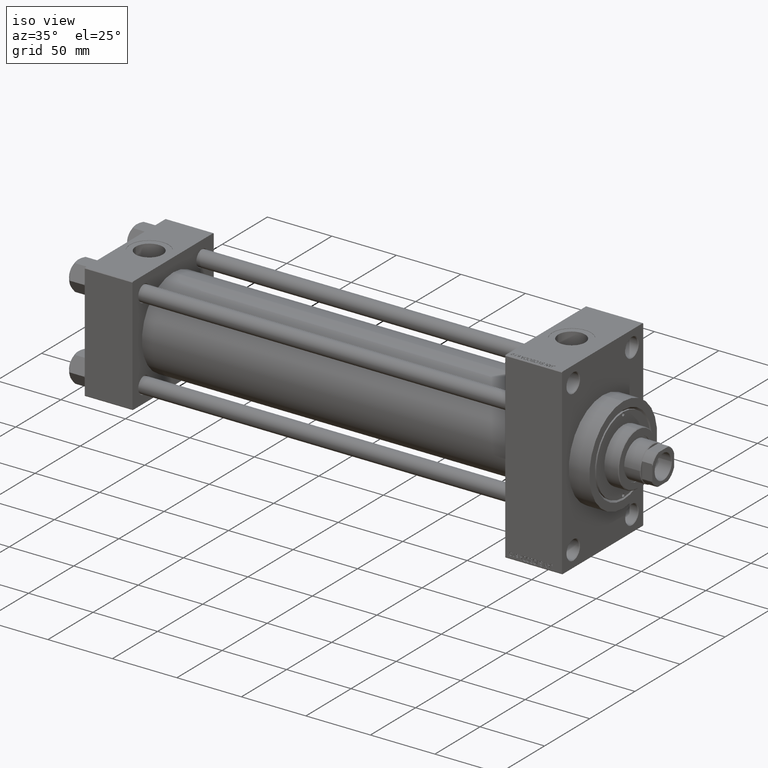
[diagram: clean part render]
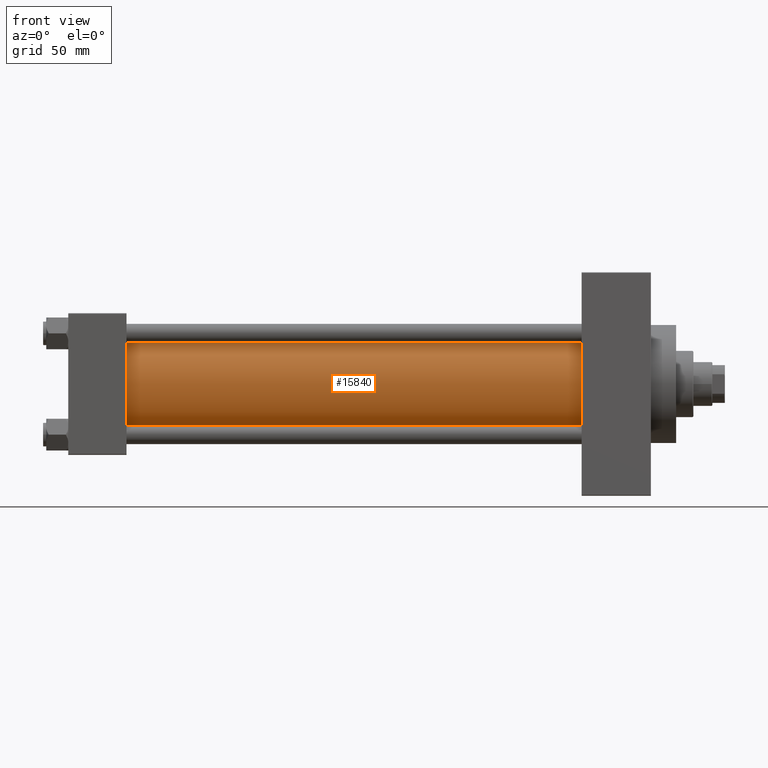
[diagram: tour spotlight — one face highlighted and labeled with its STEP entity id]
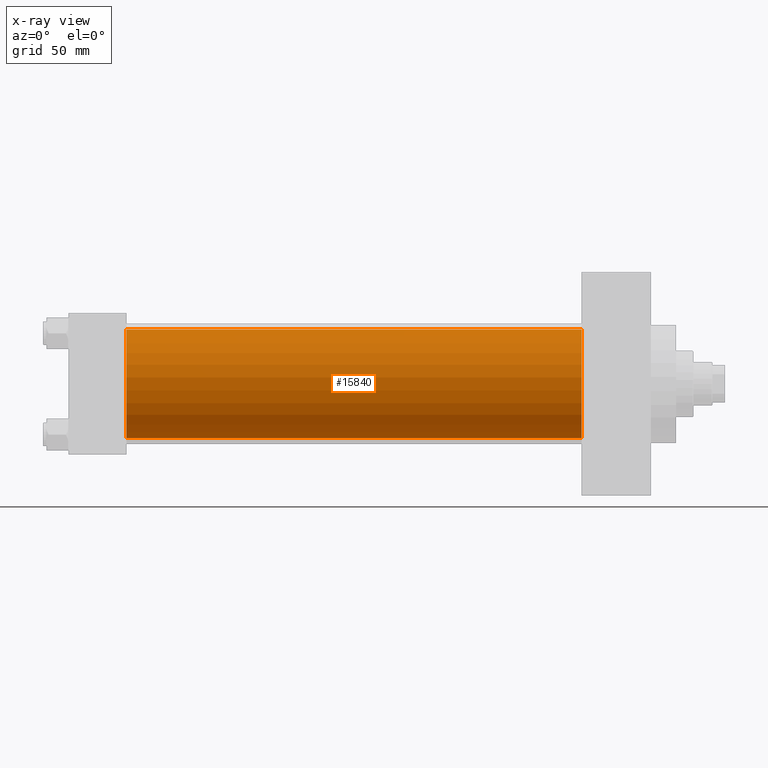
[diagram: x-ray of the same camera — body ghosted, this tour face saturated]
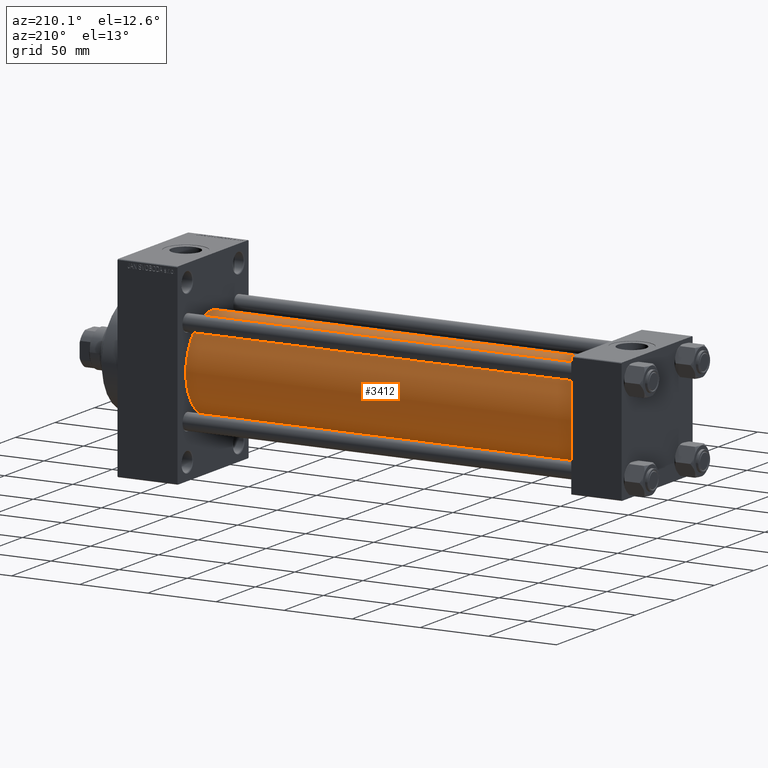
[diagram: tour spotlight — one face highlighted and labeled with its STEP entity id]
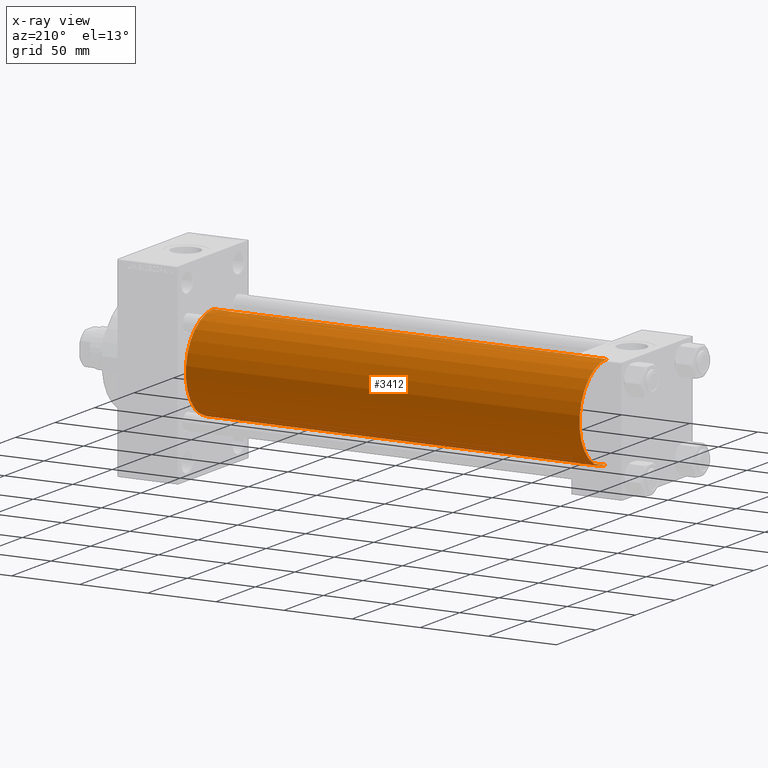
[diagram: x-ray of the same camera — body ghosted, this tour face saturated]
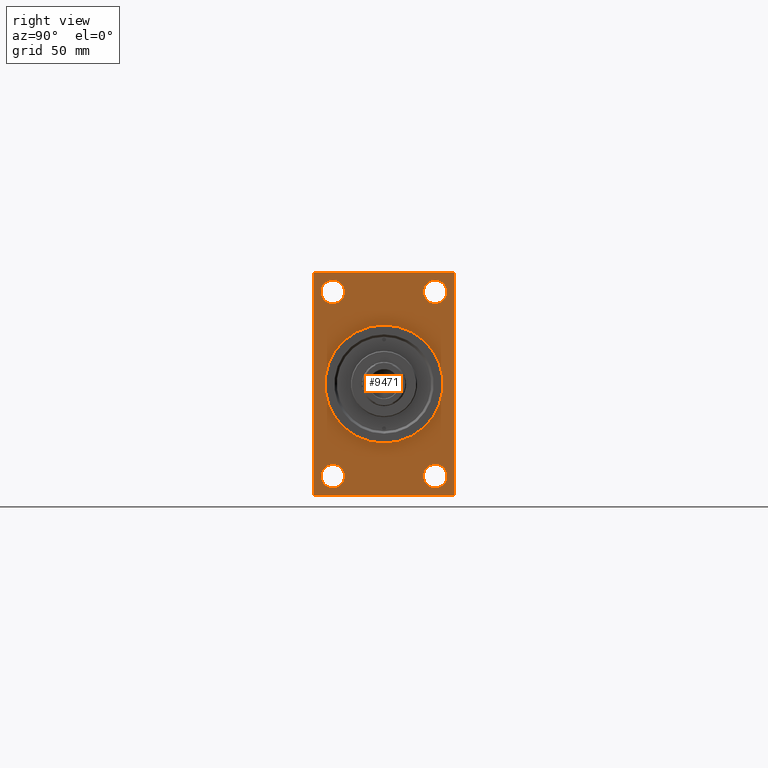
[diagram: tour spotlight — one face highlighted and labeled with its STEP entity id]
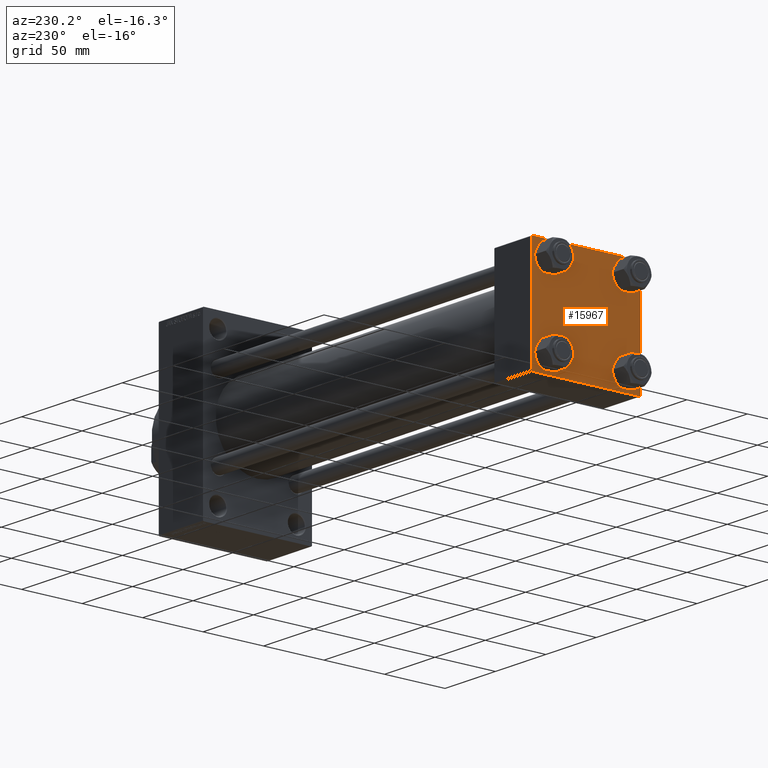
[diagram: tour spotlight — one face highlighted and labeled with its STEP entity id]
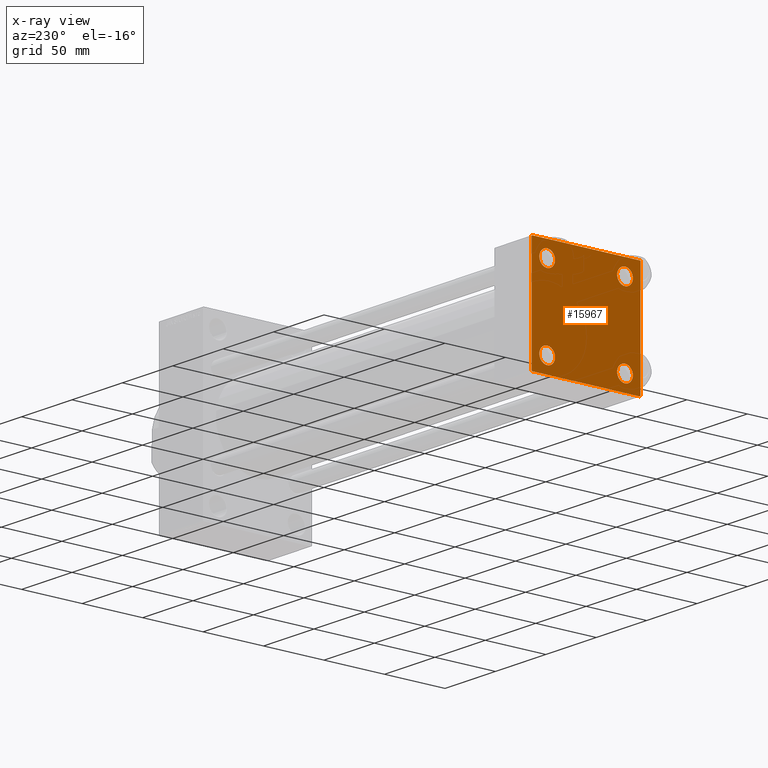
[diagram: x-ray of the same camera — body ghosted, this tour face saturated]
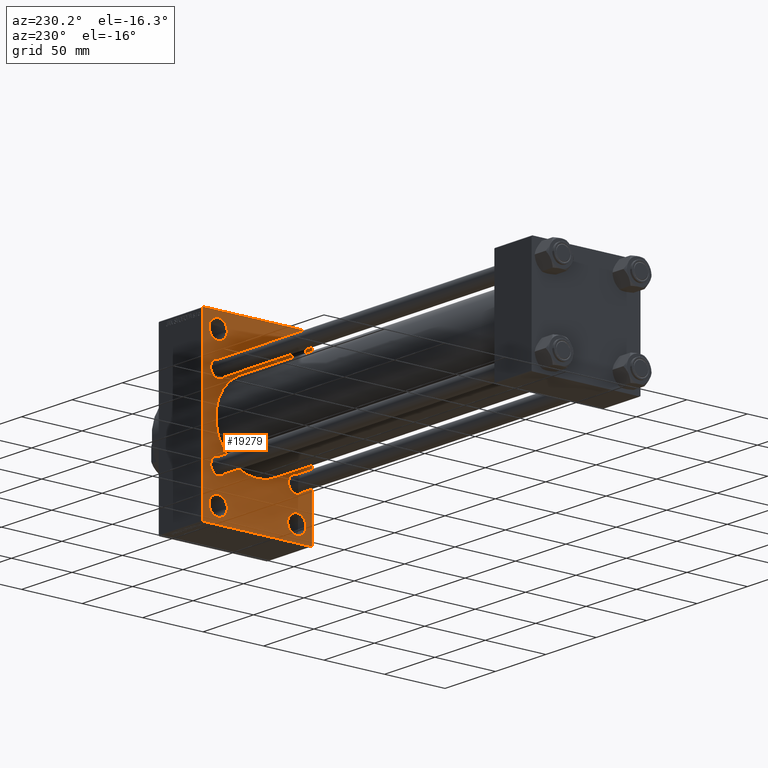
[diagram: tour spotlight — one face highlighted and labeled with its STEP entity id]
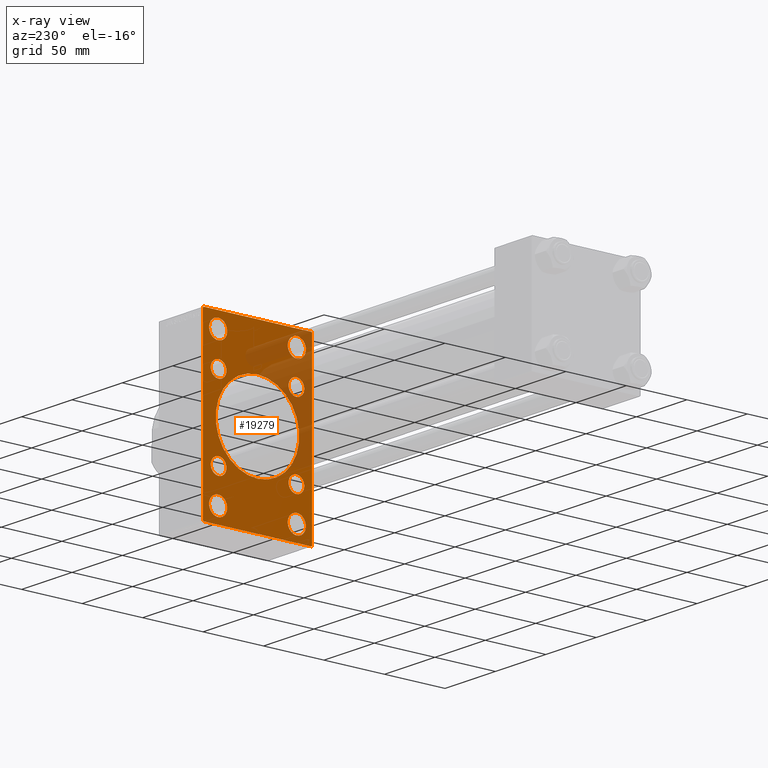
[diagram: x-ray of the same camera — body ghosted, this tour face saturated]
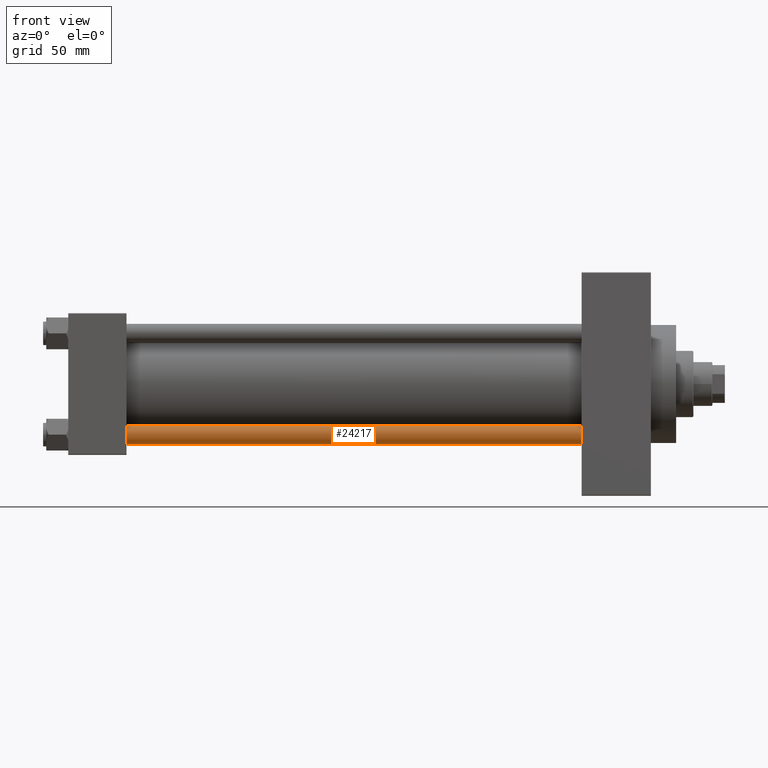
[diagram: tour spotlight — one face highlighted and labeled with its STEP entity id]
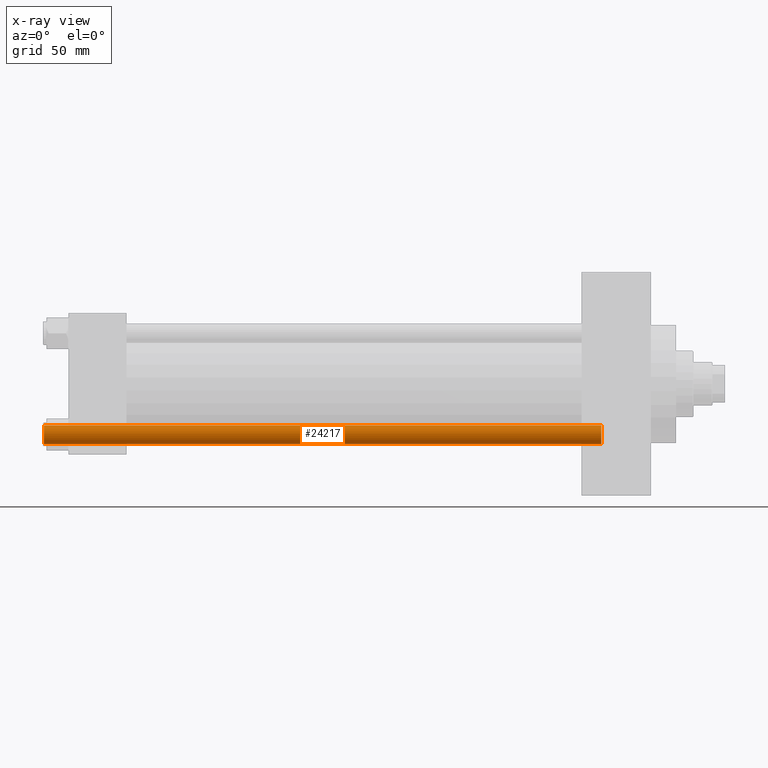
[diagram: x-ray of the same camera — body ghosted, this tour face saturated]
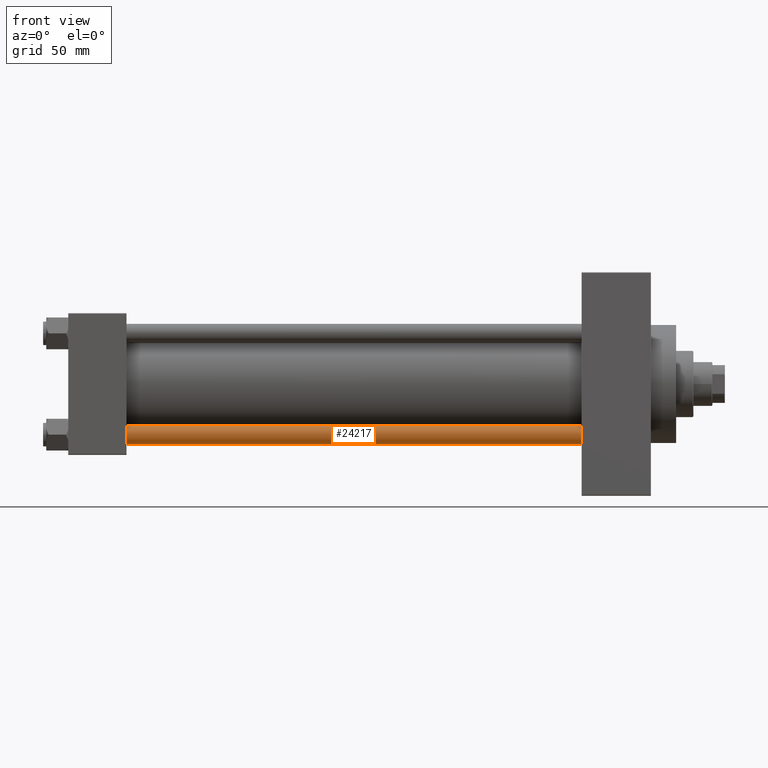
[diagram: tour spotlight — one face highlighted and labeled with its STEP entity id]
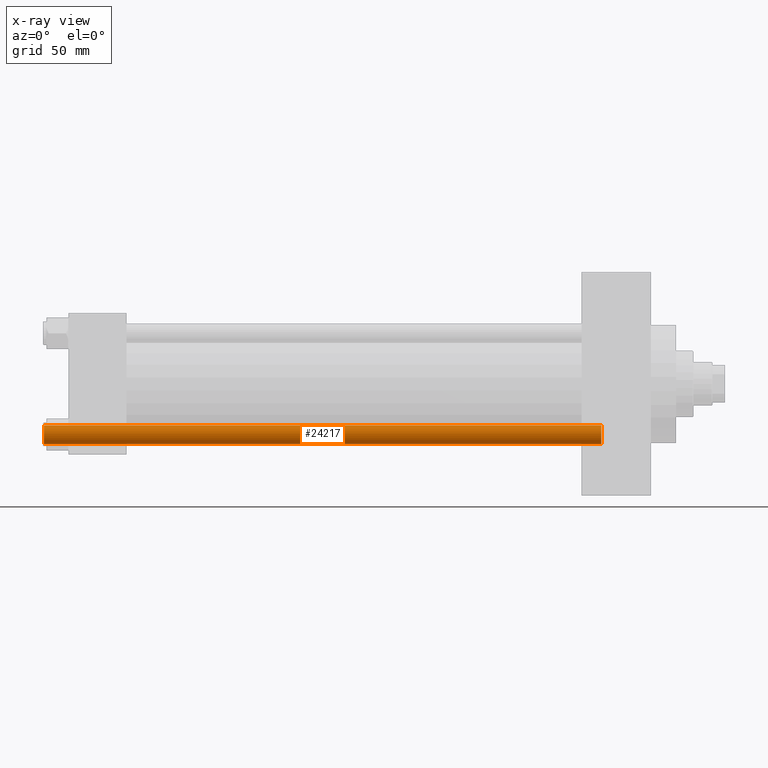
[diagram: x-ray of the same camera — body ghosted, this tour face saturated]
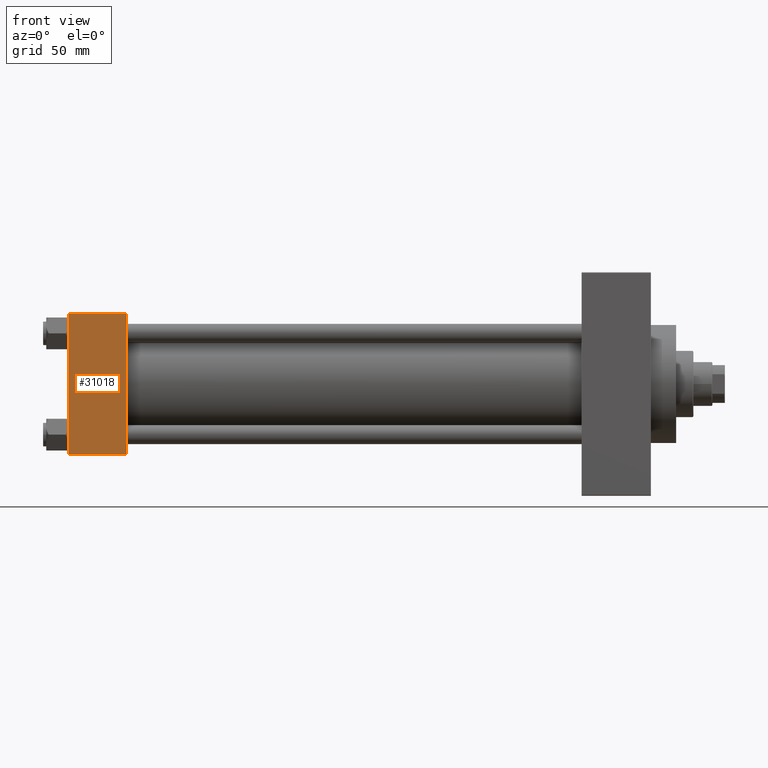
[diagram: tour spotlight — one face highlighted and labeled with its STEP entity id]
A machine part: a face-by-face anatomy tour. The part has 1111 B-rep faces; the first image is the clean iso view, then the 8 largest visible faces are spotlighted one at a time (largest first), each with its STEP entity span.

Face 1 — front view, entity #15840. An x-ray twin of the same camera follows (body ghosted, this face saturated) — the face is partly hidden behind the body. In plain terms, the highlighted cylindrical surface (partial cylindrical patch) has radius 34.5 mm, axis along (-1, -0, -0).
Definition (entity closure, byte-faithful):
#660 = LINE ( 'NONE', #33047, #44955 ) ;
#1502 = VECTOR ( 'NONE', #9990, 1000.000000000000000 ) ;
#4585 = CARTESIAN_POINT ( 'NONE',  ( 325.9999999999999432, -2.602085213965210642E-15, 0.000000000000000000 ) ) ;
#5302 = DIRECTION ( 'NONE',  ( -1.000000000000000000, -0.000000000000000000, -0.000000000000000000 ) ) ;
#6015 = EDGE_CURVE ( 'NONE', #29799, #19592, #41897, .T. ) ;
#6085 = CARTESIAN_POINT ( 'NONE',  ( 325.9999999999999432, -2.602085213965210642E-15, 0.000000000000000000 ) ) ;
#6357 = CARTESIAN_POINT ( 'NONE',  ( 36.99999999999997868, -2.602085213965210642E-15, 34.50000000000000000 ) ) ;
#7143 = ORIENTED_EDGE ( 'NONE', *, *, #6015, .T. ) ;
#9990 = DIRECTION ( 'NONE',  ( -1.000000000000000000, -0.000000000000000000, -0.000000000000000000 ) ) ;
#13268 = DIRECTION ( 'NONE',  ( 0.000000000000000000, 0.000000000000000000, -1.000000000000000000 ) ) ;
#14916 = EDGE_CURVE ( 'NONE', #26714, #30531, #660, .T. ) ;
#15840 = ADVANCED_FACE ( 'NONE', ( #38139 ), #44868, .T. ) ;
#17181 = CARTESIAN_POINT ( 'NONE',  ( 36.99999999999997868, 1.622946243093158675E-15, -34.50000000000000000 ) ) ;
#17314 = ORIENTED_EDGE ( 'NONE', *, *, #42488, .T. ) ;
#19228 = DIRECTION ( 'NONE',  ( 0.000000000000000000, 0.000000000000000000, 1.000000000000000000 ) ) ;
#19592 = VERTEX_POINT ( 'NONE', #6357 ) ;
#20335 = CARTESIAN_POINT ( 'NONE',  ( 325.9999999999999432, -2.602085213965210642E-15, 34.50000000000000000 ) ) ;
#21781 = CIRCLE ( 'NONE', #33274, 34.50000000000000000 ) ;
#24694 = CARTESIAN_POINT ( 'NONE',  ( 36.99999999999997868, -2.602085213965210642E-15, 0.000000000000000000 ) ) ;
#26714 = VERTEX_POINT ( 'NONE', #41039 ) ;
#29233 = DIRECTION ( 'NONE',  ( 1.000000000000000000, -0.000000000000000000, 0.000000000000000000 ) ) ;
#29799 = VERTEX_POINT ( 'NONE', #35275 ) ;
#29921 = DIRECTION ( 'NONE',  ( -1.000000000000000000, -0.000000000000000000, -0.000000000000000000 ) ) ;
#30531 = VERTEX_POINT ( 'NONE', #17181 ) ;
#33047 = CARTESIAN_POINT ( 'NONE',  ( 325.9999999999999432, 1.622946243093158675E-15, -34.50000000000000000 ) ) ;
#33274 = AXIS2_PLACEMENT_3D ( 'NONE', #6085, #46360, #13268 ) ;
#34855 = ORIENTED_EDGE ( 'NONE', *, *, #35119, .F. ) ;
#35044 = CIRCLE ( 'NONE', #46441, 34.50000000000000000 ) ;
#35119 = EDGE_CURVE ( 'NONE', #29799, #26714, #21781, .T. ) ;
#35275 = CARTESIAN_POINT ( 'NONE',  ( 325.9999999999999432, -2.602085213965210642E-15, 34.50000000000000000 ) ) ;
#35702 = DIRECTION ( 'NONE',  ( 0.000000000000000000, 0.000000000000000000, 1.000000000000000000 ) ) ;
#35807 = AXIS2_PLACEMENT_3D ( 'NONE', #4585, #5302, #19228 ) ;
#38139 = FACE_OUTER_BOUND ( 'NONE', #42341, .T. ) ;
#41039 = CARTESIAN_POINT ( 'NONE',  ( 325.9999999999999432, 1.622946243093158675E-15, -34.50000000000000000 ) ) ;
#41897 = LINE ( 'NONE', #20335, #1502 ) ;
#42341 = EDGE_LOOP ( 'NONE', ( #42952, #34855, #7143, #17314 ) ) ;
#42488 = EDGE_CURVE ( 'NONE', #19592, #30531, #35044, .T. ) ;
#42952 = ORIENTED_EDGE ( 'NONE', *, *, #14916, .F. ) ;
#44868 = CYLINDRICAL_SURFACE ( 'NONE', #35807, 34.50000000000000000 ) ;
#44955 = VECTOR ( 'NONE', #29921, 1000.000000000000000 ) ;
#46360 = DIRECTION ( 'NONE',  ( 1.000000000000000000, 0.000000000000000000, 0.000000000000000000 ) ) ;
#46441 = AXIS2_PLACEMENT_3D ( 'NONE', #24694, #29233, #35702 ) ;

Face 2 — auxiliary view, entity #3412. An x-ray twin of the same camera follows (body ghosted, this face saturated) — the face is partly hidden behind the body. In plain terms, the highlighted cylindrical surface (partial cylindrical patch) has radius 34.5 mm, axis along (-1, -0, -0).
Definition (entity closure, byte-faithful):
#660 = LINE ( 'NONE', #33047, #44955 ) ;
#1502 = VECTOR ( 'NONE', #9990, 1000.000000000000000 ) ;
#1893 = CARTESIAN_POINT ( 'NONE',  ( 325.9999999999999432, -2.602085213965210642E-15, 0.000000000000000000 ) ) ;
#2413 = ORIENTED_EDGE ( 'NONE', *, *, #14916, .T. ) ;
#3412 = ADVANCED_FACE ( 'NONE', ( #9578 ), #21986, .T. ) ;
#6015 = EDGE_CURVE ( 'NONE', #29799, #19592, #41897, .T. ) ;
#6357 = CARTESIAN_POINT ( 'NONE',  ( 36.99999999999997868, -2.602085213965210642E-15, 34.50000000000000000 ) ) ;
#6794 = DIRECTION ( 'NONE',  ( 1.000000000000000000, -0.000000000000000000, 0.000000000000000000 ) ) ;
#9578 = FACE_OUTER_BOUND ( 'NONE', #12363, .T. ) ;
#9990 = DIRECTION ( 'NONE',  ( -1.000000000000000000, -0.000000000000000000, -0.000000000000000000 ) ) ;
#10090 = AXIS2_PLACEMENT_3D ( 'NONE', #1893, #46250, #17002 ) ;
#10453 = DIRECTION ( 'NONE',  ( -1.000000000000000000, -0.000000000000000000, -0.000000000000000000 ) ) ;
#12363 = EDGE_LOOP ( 'NONE', ( #15448, #2413, #26461, #31106 ) ) ;
#14916 = EDGE_CURVE ( 'NONE', #26714, #30531, #660, .T. ) ;
#15448 = ORIENTED_EDGE ( 'NONE', *, *, #28746, .F. ) ;
#17002 = DIRECTION ( 'NONE',  ( 0.000000000000000000, 0.000000000000000000, -1.000000000000000000 ) ) ;
#17023 = CIRCLE ( 'NONE', #10090, 34.50000000000000000 ) ;
#17181 = CARTESIAN_POINT ( 'NONE',  ( 36.99999999999997868, 1.622946243093158675E-15, -34.50000000000000000 ) ) ;
#19592 = VERTEX_POINT ( 'NONE', #6357 ) ;
#20335 = CARTESIAN_POINT ( 'NONE',  ( 325.9999999999999432, -2.602085213965210642E-15, 34.50000000000000000 ) ) ;
#21483 = AXIS2_PLACEMENT_3D ( 'NONE', #47296, #6794, #43718 ) ;
#21986 = CYLINDRICAL_SURFACE ( 'NONE', #27490, 34.50000000000000000 ) ;
#23772 = CIRCLE ( 'NONE', #21483, 34.50000000000000000 ) ;
#24532 = EDGE_CURVE ( 'NONE', #30531, #19592, #23772, .T. ) ;
#26461 = ORIENTED_EDGE ( 'NONE', *, *, #24532, .T. ) ;
#26714 = VERTEX_POINT ( 'NONE', #41039 ) ;
#27490 = AXIS2_PLACEMENT_3D ( 'NONE', #29184, #10453, #36132 ) ;
#28746 = EDGE_CURVE ( 'NONE', #26714, #29799, #17023, .T. ) ;
#29184 = CARTESIAN_POINT ( 'NONE',  ( 325.9999999999999432, -2.602085213965210642E-15, 0.000000000000000000 ) ) ;
#29799 = VERTEX_POINT ( 'NONE', #35275 ) ;
#29921 = DIRECTION ( 'NONE',  ( -1.000000000000000000, -0.000000000000000000, -0.000000000000000000 ) ) ;
#30531 = VERTEX_POINT ( 'NONE', #17181 ) ;
#31106 = ORIENTED_EDGE ( 'NONE', *, *, #6015, .F. ) ;
#33047 = CARTESIAN_POINT ( 'NONE',  ( 325.9999999999999432, 1.622946243093158675E-15, -34.50000000000000000 ) ) ;
#35275 = CARTESIAN_POINT ( 'NONE',  ( 325.9999999999999432, -2.602085213965210642E-15, 34.50000000000000000 ) ) ;
#36132 = DIRECTION ( 'NONE',  ( 0.000000000000000000, 0.000000000000000000, 1.000000000000000000 ) ) ;
#41039 = CARTESIAN_POINT ( 'NONE',  ( 325.9999999999999432, 1.622946243093158675E-15, -34.50000000000000000 ) ) ;
#41897 = LINE ( 'NONE', #20335, #1502 ) ;
#43718 = DIRECTION ( 'NONE',  ( 0.000000000000000000, 0.000000000000000000, 1.000000000000000000 ) ) ;
#44955 = VECTOR ( 'NONE', #29921, 1000.000000000000000 ) ;
#46250 = DIRECTION ( 'NONE',  ( 1.000000000000000000, 0.000000000000000000, 0.000000000000000000 ) ) ;
#47296 = CARTESIAN_POINT ( 'NONE',  ( 36.99999999999997868, -2.602085213965210642E-15, 0.000000000000000000 ) ) ;

Face 3 — right view, entity #9471. In plain terms, the highlighted planar face has unit normal (-1, 0, 0).
Definition (entity closure, byte-faithful):
#58 = AXIS2_PLACEMENT_3D ( 'NONE', #13106, #20321, #38997 ) ;
#994 = VERTEX_POINT ( 'NONE', #13267 ) ;
#1025 = CIRCLE ( 'NONE', #17125, 7.500000000000062172 ) ;
#1099 = DIRECTION ( 'NONE',  ( 1.000000000000000000, 0.000000000000000000, 0.000000000000000000 ) ) ;
#1398 = CARTESIAN_POINT ( 'NONE',  ( 369.9999999999999432, -32.50000000000000000, 50.99999999999996447 ) ) ;
#1546 = VERTEX_POINT ( 'NONE', #10660 ) ;
#1795 = DIRECTION ( 'NONE',  ( 0.000000000000000000, -0.7071067811865867636, 0.7071067811865081598 ) ) ;
#2078 = CARTESIAN_POINT ( 'NONE',  ( 369.9999999999999432, 32.50000000000000711, 50.99999999999996447 ) ) ;
#2561 = FACE_BOUND ( 'NONE', #29791, .T. ) ;
#2903 = DIRECTION ( 'NONE',  ( 0.000000000000000000, 0.000000000000000000, 1.000000000000000000 ) ) ;
#2968 = CIRCLE ( 'NONE', #22867, 37.50000000000000711 ) ;
#3506 = EDGE_CURVE ( 'NONE', #4704, #15607, #2968, .T. ) ;
#3982 = DIRECTION ( 'NONE',  ( -0.000000000000000000, 0.7071067811865771047, 0.7071067811865180408 ) ) ;
#4541 = CARTESIAN_POINT ( 'NONE',  ( 369.9999999999999432, -44.99999999999997158, 70.49999999999987210 ) ) ;
#4704 = VERTEX_POINT ( 'NONE', #46025 ) ;
#4720 = DIRECTION ( 'NONE',  ( 0.000000000000000000, 0.000000000000000000, 1.000000000000000000 ) ) ;
#4921 = CARTESIAN_POINT ( 'NONE',  ( 369.9999999999999432, 44.49999999999996447, 71.00000000000000000 ) ) ;
#5393 = CARTESIAN_POINT ( 'NONE',  ( 369.9999999999999432, -32.50000000000000000, 66.00000000000005684 ) ) ;
#5539 = EDGE_CURVE ( 'NONE', #994, #42135, #35242, .T. ) ;
#5574 = CARTESIAN_POINT ( 'NONE',  ( 369.9999999999999432, 45.00000000000001421, -70.49999999999991473 ) ) ;
#5909 = CARTESIAN_POINT ( 'NONE',  ( 369.9999999999999432, -44.49999999999997158, -71.00000000000000000 ) ) ;
#5989 = CARTESIAN_POINT ( 'NONE',  ( 369.9999999999999432, 45.00000000000002132, 71.00000000000000000 ) ) ;
#6032 = DIRECTION ( 'NONE',  ( -0.000000000000000000, -0.7071067811865426878, -0.7071067811865524577 ) ) ;
#6181 = DIRECTION ( 'NONE',  ( 1.000000000000000000, 0.000000000000000000, 0.000000000000000000 ) ) ;
#6981 = AXIS2_PLACEMENT_3D ( 'NONE', #35638, #10212, #39471 ) ;
#7212 = LINE ( 'NONE', #44367, #31732 ) ;
#7602 = CIRCLE ( 'NONE', #11415, 37.50000000000000711 ) ;
#7715 = VERTEX_POINT ( 'NONE', #13386 ) ;
#7877 = DIRECTION ( 'NONE',  ( -1.000000000000000000, 0.000000000000000000, -0.000000000000000000 ) ) ;
#7920 = ORIENTED_EDGE ( 'NONE', *, *, #14379, .T. ) ;
#8030 = CARTESIAN_POINT ( 'NONE',  ( 369.9999999999999432, -32.50000000000000000, -66.00000000000004263 ) ) ;
#9105 = ORIENTED_EDGE ( 'NONE', *, *, #17600, .T. ) ;
#9471 = ADVANCED_FACE ( 'NONE', ( #42838, #2561, #46428, #39001, #17420, #34935 ), #46902, .F. ) ;
#10212 = DIRECTION ( 'NONE',  ( -1.000000000000000000, 0.000000000000000000, -0.000000000000000000 ) ) ;
#10597 = CIRCLE ( 'NONE', #39712, 7.500000000000047962 ) ;
#10636 = CARTESIAN_POINT ( 'NONE',  ( 369.9999999999999432, 44.49999999999990052, -70.99999999999998579 ) ) ;
#10660 = CARTESIAN_POINT ( 'NONE',  ( 369.9999999999999432, -44.49999999999994316, -71.00000000000000000 ) ) ;
#11228 = VERTEX_POINT ( 'NONE', #34835 ) ;
#11415 = AXIS2_PLACEMENT_3D ( 'NONE', #27999, #6181, #20337 ) ;
#11825 = VERTEX_POINT ( 'NONE', #35825 ) ;
#12107 = DIRECTION ( 'NONE',  ( 0.000000000000000000, 0.000000000000000000, -1.000000000000000000 ) ) ;
#12163 = CARTESIAN_POINT ( 'NONE',  ( 369.9999999999999432, -32.50000000000000000, -58.49999999999999289 ) ) ;
#12419 = EDGE_CURVE ( 'NONE', #20475, #31838, #29952, .T. ) ;
#12768 = ORIENTED_EDGE ( 'NONE', *, *, #38434, .F. ) ;
#13097 = DIRECTION ( 'NONE',  ( 0.000000000000000000, 0.7071067811865965336, -0.7071067811864985009 ) ) ;
#13106 = CARTESIAN_POINT ( 'NONE',  ( 369.9999999999999432, -32.50000000000000000, 58.50000000000000711 ) ) ;
#13185 = CARTESIAN_POINT ( 'NONE',  ( 369.9999999999999432, -44.99999999999997158, -70.50000000000005684 ) ) ;
#13267 = CARTESIAN_POINT ( 'NONE',  ( 369.9999999999999432, 45.00000000000002132, 70.50000000000000000 ) ) ;
#13269 = DIRECTION ( 'NONE',  ( 0.000000000000000000, 0.000000000000000000, -1.000000000000000000 ) ) ;
#13386 = CARTESIAN_POINT ( 'NONE',  ( 369.9999999999999432, 44.49999999999996447, 71.00000000000000000 ) ) ;
#13721 = AXIS2_PLACEMENT_3D ( 'NONE', #18909, #22281, #41188 ) ;
#14162 = CARTESIAN_POINT ( 'NONE',  ( 369.9999999999999432, 32.50000000000000711, -58.50000000000000000 ) ) ;
#14379 = EDGE_CURVE ( 'NONE', #7715, #40111, #34586, .T. ) ;
#14948 = ORIENTED_EDGE ( 'NONE', *, *, #22423, .T. ) ;
#15049 = DIRECTION ( 'NONE',  ( 0.000000000000000000, 0.000000000000000000, 1.000000000000000000 ) ) ;
#15607 = VERTEX_POINT ( 'NONE', #43449 ) ;
#15745 = CARTESIAN_POINT ( 'NONE',  ( 369.9999999999999432, -32.50000000000000000, -50.99999999999992895 ) ) ;
#16346 = CARTESIAN_POINT ( 'NONE',  ( 369.9999999999999432, -44.99999999999997158, 70.49999999999987210 ) ) ;
#16359 = CIRCLE ( 'NONE', #43167, 7.500000000000055067 ) ;
#16399 = DIRECTION ( 'NONE',  ( 0.000000000000000000, 0.000000000000000000, 1.000000000000000000 ) ) ;
#16470 = DIRECTION ( 'NONE',  ( 0.000000000000000000, 0.000000000000000000, 1.000000000000000000 ) ) ;
#17125 = AXIS2_PLACEMENT_3D ( 'NONE', #14162, #28802, #2903 ) ;
#17269 = EDGE_CURVE ( 'NONE', #31838, #20475, #10597, .T. ) ;
#17420 = FACE_BOUND ( 'NONE', #44090, .T. ) ;
#17600 = EDGE_CURVE ( 'NONE', #37892, #23678, #45655, .T. ) ;
#18613 = LINE ( 'NONE', #25341, #28919 ) ;
#18694 = ORIENTED_EDGE ( 'NONE', *, *, #45879, .T. ) ;
#18909 = CARTESIAN_POINT ( 'NONE',  ( 369.9999999999999432, 32.50000000000000711, 58.50000000000000711 ) ) ;
#18946 = VECTOR ( 'NONE', #34813, 1000.000000000000000 ) ;
#20068 = ORIENTED_EDGE ( 'NONE', *, *, #5539, .F. ) ;
#20250 = CARTESIAN_POINT ( 'NONE',  ( 369.9999999999999432, -32.50000000000000000, -58.49999999999999289 ) ) ;
#20321 = DIRECTION ( 'NONE',  ( -1.000000000000000000, 0.000000000000000000, -0.000000000000000000 ) ) ;
#20337 = DIRECTION ( 'NONE',  ( 0.000000000000000000, 0.000000000000000000, -1.000000000000000000 ) ) ;
#20475 = VERTEX_POINT ( 'NONE', #1398 ) ;
#22281 = DIRECTION ( 'NONE',  ( -1.000000000000000000, 0.000000000000000000, -0.000000000000000000 ) ) ;
#22396 = EDGE_CURVE ( 'NONE', #39065, #11825, #36017, .T. ) ;
#22423 = EDGE_CURVE ( 'NONE', #31543, #31939, #42940, .T. ) ;
#22576 = EDGE_CURVE ( 'NONE', #15607, #4704, #7602, .T. ) ;
#22867 = AXIS2_PLACEMENT_3D ( 'NONE', #44976, #1099, #12107 ) ;
#23678 = VERTEX_POINT ( 'NONE', #13185 ) ;
#24116 = CIRCLE ( 'NONE', #43237, 7.500000000000047962 ) ;
#24357 = ORIENTED_EDGE ( 'NONE', *, *, #17269, .T. ) ;
#24750 = EDGE_CURVE ( 'NONE', #40111, #37892, #42476, .T. ) ;
#25252 = EDGE_CURVE ( 'NONE', #36317, #11228, #33726, .T. ) ;
#25341 = CARTESIAN_POINT ( 'NONE',  ( 369.9999999999999432, 45.00000000000001421, -70.49999999999991473 ) ) ;
#25640 = EDGE_CURVE ( 'NONE', #994, #7715, #37764, .T. ) ;
#25832 = CARTESIAN_POINT ( 'NONE',  ( 369.9999999999999432, -32.50000000000000000, 58.50000000000000711 ) ) ;
#25909 = DIRECTION ( 'NONE',  ( 0.000000000000000000, -1.000000000000000000, -1.541976423090495633E-16 ) ) ;
#25989 = AXIS2_PLACEMENT_3D ( 'NONE', #12163, #7877, #15049 ) ;
#26773 = CARTESIAN_POINT ( 'NONE',  ( 369.9999999999999432, 32.50000000000000711, -50.99999999999993605 ) ) ;
#27243 = ORIENTED_EDGE ( 'NONE', *, *, #32273, .T. ) ;
#27556 = VECTOR ( 'NONE', #28049, 1000.000000000000000 ) ;
#27999 = CARTESIAN_POINT ( 'NONE',  ( 369.9999999999999432, 0.000000000000000000, 0.000000000000000000 ) ) ;
#28049 = DIRECTION ( 'NONE',  ( 0.000000000000000000, -4.886545002751570165E-17, -1.000000000000000000 ) ) ;
#28593 = CARTESIAN_POINT ( 'NONE',  ( 369.9999999999999432, 32.50000000000000711, 58.50000000000000711 ) ) ;
#28802 = DIRECTION ( 'NONE',  ( -1.000000000000000000, 0.000000000000000000, -0.000000000000000000 ) ) ;
#28919 = VECTOR ( 'NONE', #3982, 999.9999999999998863 ) ;
#29791 = EDGE_LOOP ( 'NONE', ( #30352, #14948 ) ) ;
#29952 = CIRCLE ( 'NONE', #58, 7.500000000000047962 ) ;
#30352 = ORIENTED_EDGE ( 'NONE', *, *, #37375, .T. ) ;
#30480 = EDGE_CURVE ( 'NONE', #23678, #1546, #39232, .T. ) ;
#30754 = ORIENTED_EDGE ( 'NONE', *, *, #22576, .F. ) ;
#31543 = VERTEX_POINT ( 'NONE', #15745 ) ;
#31598 = EDGE_LOOP ( 'NONE', ( #43991, #24357 ) ) ;
#31605 = VECTOR ( 'NONE', #13097, 1000.000000000000114 ) ;
#31732 = VECTOR ( 'NONE', #25909, 1000.000000000000000 ) ;
#31838 = VERTEX_POINT ( 'NONE', #5393 ) ;
#31939 = VERTEX_POINT ( 'NONE', #8030 ) ;
#32019 = EDGE_LOOP ( 'NONE', ( #27243, #34850 ) ) ;
#32261 = ORIENTED_EDGE ( 'NONE', *, *, #35954, .T. ) ;
#32273 = EDGE_CURVE ( 'NONE', #11228, #36317, #1025, .T. ) ;
#33236 = CARTESIAN_POINT ( 'NONE',  ( 369.9999999999999432, -44.49999999999983658, 70.99999999999998579 ) ) ;
#33726 = CIRCLE ( 'NONE', #37517, 7.500000000000062172 ) ;
#34354 = VECTOR ( 'NONE', #13269, 1000.000000000000000 ) ;
#34586 = LINE ( 'NONE', #45601, #18946 ) ;
#34813 = DIRECTION ( 'NONE',  ( 0.000000000000000000, -1.000000000000000000, -1.541976423090495387E-16 ) ) ;
#34835 = CARTESIAN_POINT ( 'NONE',  ( 369.9999999999999432, 32.50000000000000711, -66.00000000000005684 ) ) ;
#34850 = ORIENTED_EDGE ( 'NONE', *, *, #25252, .T. ) ;
#34935 = FACE_OUTER_BOUND ( 'NONE', #46219, .T. ) ;
#35242 = LINE ( 'NONE', #5989, #27556 ) ;
#35562 = VERTEX_POINT ( 'NONE', #10636 ) ;
#35638 = CARTESIAN_POINT ( 'NONE',  ( 369.9999999999999432, 0.000000000000000000, 0.000000000000000000 ) ) ;
#35825 = CARTESIAN_POINT ( 'NONE',  ( 369.9999999999999432, 32.50000000000000711, 66.00000000000005684 ) ) ;
#35954 = EDGE_CURVE ( 'NONE', #11825, #39065, #24116, .T. ) ;
#36017 = CIRCLE ( 'NONE', #13721, 7.500000000000047962 ) ;
#36317 = VERTEX_POINT ( 'NONE', #26773 ) ;
#37375 = EDGE_CURVE ( 'NONE', #31939, #31543, #16359, .T. ) ;
#37517 = AXIS2_PLACEMENT_3D ( 'NONE', #45493, #38752, #16470 ) ;
#37764 = LINE ( 'NONE', #4921, #42179 ) ;
#37892 = VERTEX_POINT ( 'NONE', #4541 ) ;
#38434 = EDGE_CURVE ( 'NONE', #35562, #1546, #7212, .T. ) ;
#38752 = DIRECTION ( 'NONE',  ( -1.000000000000000000, 0.000000000000000000, -0.000000000000000000 ) ) ;
#38997 = DIRECTION ( 'NONE',  ( 0.000000000000000000, 0.000000000000000000, 1.000000000000000000 ) ) ;
#39001 = FACE_BOUND ( 'NONE', #39444, .T. ) ;
#39065 = VERTEX_POINT ( 'NONE', #2078 ) ;
#39232 = LINE ( 'NONE', #5909, #31605 ) ;
#39444 = EDGE_LOOP ( 'NONE', ( #41283, #32261 ) ) ;
#39471 = DIRECTION ( 'NONE',  ( -0.000000000000000000, 0.000000000000000000, 1.000000000000000000 ) ) ;
#39604 = DIRECTION ( 'NONE',  ( 0.000000000000000000, 0.000000000000000000, 1.000000000000000000 ) ) ;
#39712 = AXIS2_PLACEMENT_3D ( 'NONE', #25832, #40449, #4720 ) ;
#39842 = VECTOR ( 'NONE', #6032, 1000.000000000000000 ) ;
#40111 = VERTEX_POINT ( 'NONE', #33236 ) ;
#40449 = DIRECTION ( 'NONE',  ( -1.000000000000000000, 0.000000000000000000, -0.000000000000000000 ) ) ;
#41188 = DIRECTION ( 'NONE',  ( 0.000000000000000000, 0.000000000000000000, 1.000000000000000000 ) ) ;
#41283 = ORIENTED_EDGE ( 'NONE', *, *, #22396, .T. ) ;
#42135 = VERTEX_POINT ( 'NONE', #5574 ) ;
#42179 = VECTOR ( 'NONE', #1795, 1000.000000000000000 ) ;
#42476 = LINE ( 'NONE', #16346, #39842 ) ;
#42527 = DIRECTION ( 'NONE',  ( -1.000000000000000000, 0.000000000000000000, -0.000000000000000000 ) ) ;
#42616 = ORIENTED_EDGE ( 'NONE', *, *, #3506, .F. ) ;
#42838 = FACE_BOUND ( 'NONE', #31598, .T. ) ;
#42940 = CIRCLE ( 'NONE', #25989, 7.500000000000055067 ) ;
#43167 = AXIS2_PLACEMENT_3D ( 'NONE', #20250, #42527, #16399 ) ;
#43218 = DIRECTION ( 'NONE',  ( -1.000000000000000000, 0.000000000000000000, -0.000000000000000000 ) ) ;
#43237 = AXIS2_PLACEMENT_3D ( 'NONE', #28593, #43218, #39604 ) ;
#43345 = ORIENTED_EDGE ( 'NONE', *, *, #30480, .T. ) ;
#43449 = CARTESIAN_POINT ( 'NONE',  ( 369.9999999999999432, 4.592425496802575156E-15, -37.50000000000000711 ) ) ;
#43991 = ORIENTED_EDGE ( 'NONE', *, *, #12419, .T. ) ;
#44090 = EDGE_LOOP ( 'NONE', ( #42616, #30754 ) ) ;
#44367 = CARTESIAN_POINT ( 'NONE',  ( 369.9999999999999432, 45.00000000000001421, -70.99999999999998579 ) ) ;
#44976 = CARTESIAN_POINT ( 'NONE',  ( 369.9999999999999432, 0.000000000000000000, 0.000000000000000000 ) ) ;
#45251 = ORIENTED_EDGE ( 'NONE', *, *, #25640, .T. ) ;
#45493 = CARTESIAN_POINT ( 'NONE',  ( 369.9999999999999432, 32.50000000000000711, -58.50000000000000000 ) ) ;
#45601 = CARTESIAN_POINT ( 'NONE',  ( 369.9999999999999432, 45.00000000000002132, 71.00000000000000000 ) ) ;
#45655 = LINE ( 'NONE', #46361, #34354 ) ;
#45879 = EDGE_CURVE ( 'NONE', #35562, #42135, #18613, .T. ) ;
#46025 = CARTESIAN_POINT ( 'NONE',  ( 369.9999999999999432, 0.000000000000000000, 37.50000000000000711 ) ) ;
#46219 = EDGE_LOOP ( 'NONE', ( #9105, #43345, #12768, #18694, #20068, #45251, #7920, #46758 ) ) ;
#46361 = CARTESIAN_POINT ( 'NONE',  ( 369.9999999999999432, -44.99999999999997158, 70.99999999999998579 ) ) ;
#46428 = FACE_BOUND ( 'NONE', #32019, .T. ) ;
#46758 = ORIENTED_EDGE ( 'NONE', *, *, #24750, .T. ) ;
#46902 = PLANE ( 'NONE',  #6981 ) ;

Face 4 — auxiliary view, entity #15967. An x-ray twin of the same camera follows (body ghosted, this face saturated) — the face is partly hidden behind the body. In plain terms, the highlighted planar face has unit normal (-1, 0, 0).
Definition (entity closure, byte-faithful):
#591 = VERTEX_POINT ( 'NONE', #35624 ) ;
#611 = LINE ( 'NONE', #22211, #19951 ) ;
#682 = AXIS2_PLACEMENT_3D ( 'NONE', #19996, #20231, #19752 ) ;
#846 = CARTESIAN_POINT ( 'NONE',  ( 0.000000000000000000, 44.99999999999998579, 45.00000000000001421 ) ) ;
#1432 = DIRECTION ( 'NONE',  ( 1.000000000000000000, -0.000000000000000000, 0.000000000000000000 ) ) ;
#1694 = EDGE_CURVE ( 'NONE', #12175, #22983, #45009, .T. ) ;
#1920 = ORIENTED_EDGE ( 'NONE', *, *, #11284, .T. ) ;
#2685 = VERTEX_POINT ( 'NONE', #18131 ) ;
#2719 = LINE ( 'NONE', #32214, #18735 ) ;
#3193 = LINE ( 'NONE', #43473, #15537 ) ;
#3887 = EDGE_CURVE ( 'NONE', #24835, #14182, #21362, .T. ) ;
#3953 = VERTEX_POINT ( 'NONE', #8937 ) ;
#4079 = AXIS2_PLACEMENT_3D ( 'NONE', #15930, #13284, #35356 ) ;
#4200 = ORIENTED_EDGE ( 'NONE', *, *, #3887, .T. ) ;
#4544 = EDGE_CURVE ( 'NONE', #25920, #7296, #19868, .T. ) ;
#5268 = CARTESIAN_POINT ( 'NONE',  ( 0.000000000000000000, -32.14999999999997726, -32.15000000000001279 ) ) ;
#5445 = CIRCLE ( 'NONE', #6205, 6.499999999999977796 ) ;
#5506 = DIRECTION ( 'NONE',  ( 1.000000000000000000, -0.000000000000000000, 0.000000000000000000 ) ) ;
#5659 = AXIS2_PLACEMENT_3D ( 'NONE', #38021, #31313, #12603 ) ;
#6205 = AXIS2_PLACEMENT_3D ( 'NONE', #5268, #1432, #29566 ) ;
#7032 = CARTESIAN_POINT ( 'NONE',  ( 0.000000000000000000, -32.14999999999997726, 25.64999999999999147 ) ) ;
#7190 = FACE_BOUND ( 'NONE', #41138, .T. ) ;
#7296 = VERTEX_POINT ( 'NONE', #28421 ) ;
#7333 = EDGE_LOOP ( 'NONE', ( #16627, #46743 ) ) ;
#8186 = CIRCLE ( 'NONE', #34996, 6.499999999999977796 ) ;
#8519 = LINE ( 'NONE', #846, #26911 ) ;
#8694 = CIRCLE ( 'NONE', #5659, 6.499999999999977796 ) ;
#8937 = CARTESIAN_POINT ( 'NONE',  ( 0.000000000000000000, 44.99999999999998579, 44.50000000000001421 ) ) ;
#9127 = AXIS2_PLACEMENT_3D ( 'NONE', #12452, #30698, #18954 ) ;
#9155 = FACE_BOUND ( 'NONE', #45304, .T. ) ;
#9189 = EDGE_CURVE ( 'NONE', #41847, #40446, #5445, .T. ) ;
#10210 = EDGE_CURVE ( 'NONE', #3953, #34571, #8519, .T. ) ;
#11284 = EDGE_CURVE ( 'NONE', #14182, #24835, #35998, .T. ) ;
#11501 = CARTESIAN_POINT ( 'NONE',  ( 0.000000000000000000, 44.99999999999998579, 45.00000000000001421 ) ) ;
#11718 = ORIENTED_EDGE ( 'NONE', *, *, #14712, .T. ) ;
#11845 = DIRECTION ( 'NONE',  ( 0.000000000000000000, 0.000000000000000000, 1.000000000000000000 ) ) ;
#12175 = VERTEX_POINT ( 'NONE', #34317 ) ;
#12398 = ORIENTED_EDGE ( 'NONE', *, *, #4544, .T. ) ;
#12452 = CARTESIAN_POINT ( 'NONE',  ( 0.000000000000000000, 32.14999999999999147, -32.15000000000000568 ) ) ;
#12603 = DIRECTION ( 'NONE',  ( 0.000000000000000000, 0.000000000000000000, 1.000000000000000000 ) ) ;
#13080 = VECTOR ( 'NONE', #45785, 1000.000000000000114 ) ;
#13284 = DIRECTION ( 'NONE',  ( 1.000000000000000000, -0.000000000000000000, 0.000000000000000000 ) ) ;
#13482 = VERTEX_POINT ( 'NONE', #33614 ) ;
#14182 = VERTEX_POINT ( 'NONE', #7032 ) ;
#14404 = DIRECTION ( 'NONE',  ( 1.000000000000000000, -0.000000000000000000, 0.000000000000000000 ) ) ;
#14466 = CARTESIAN_POINT ( 'NONE',  ( 0.000000000000000000, -32.14999999999997726, -25.65000000000003411 ) ) ;
#14712 = EDGE_CURVE ( 'NONE', #40446, #41847, #8186, .T. ) ;
#14724 = VERTEX_POINT ( 'NONE', #33816 ) ;
#14859 = CARTESIAN_POINT ( 'NONE',  ( 0.000000000000000000, -32.14999999999997726, 38.65000000000003411 ) ) ;
#15120 = AXIS2_PLACEMENT_3D ( 'NONE', #21825, #44589, #25184 ) ;
#15537 = VECTOR ( 'NONE', #40762, 1000.000000000000114 ) ;
#15930 = CARTESIAN_POINT ( 'NONE',  ( 0.000000000000000000, 32.14999999999999147, 32.15000000000000568 ) ) ;
#15967 = ADVANCED_FACE ( 'NONE', ( #9155, #7190, #43879, #40030, #36202 ), #36427, .T. ) ;
#16059 = CARTESIAN_POINT ( 'NONE',  ( 0.000000000000000000, 44.49999999999998579, -44.99999999999998579 ) ) ;
#16627 = ORIENTED_EDGE ( 'NONE', *, *, #1694, .T. ) ;
#17306 = CARTESIAN_POINT ( 'NONE',  ( 0.000000000000000000, -44.49999999999995737, -45.00000000000000000 ) ) ;
#18131 = CARTESIAN_POINT ( 'NONE',  ( 0.000000000000000000, 44.49999999999998579, 45.00000000000001421 ) ) ;
#18253 = CARTESIAN_POINT ( 'NONE',  ( 0.000000000000000000, -32.14999999999997726, 32.15000000000001279 ) ) ;
#18735 = VECTOR ( 'NONE', #31266, 1000.000000000000000 ) ;
#18954 = DIRECTION ( 'NONE',  ( 0.000000000000000000, 0.000000000000000000, 1.000000000000000000 ) ) ;
#19752 = DIRECTION ( 'NONE',  ( 0.000000000000000000, 0.000000000000000000, 1.000000000000000000 ) ) ;
#19868 = CIRCLE ( 'NONE', #9127, 6.499999999999977796 ) ;
#19951 = VECTOR ( 'NONE', #41119, 1000.000000000000000 ) ;
#19996 = CARTESIAN_POINT ( 'NONE',  ( 0.000000000000000000, -32.14999999999997726, 32.15000000000001279 ) ) ;
#20143 = DIRECTION ( 'NONE',  ( 0.000000000000000000, 0.000000000000000000, 1.000000000000000000 ) ) ;
#20231 = DIRECTION ( 'NONE',  ( 1.000000000000000000, -0.000000000000000000, 0.000000000000000000 ) ) ;
#20840 = VERTEX_POINT ( 'NONE', #17306 ) ;
#21095 = VERTEX_POINT ( 'NONE', #16059 ) ;
#21362 = CIRCLE ( 'NONE', #682, 6.500000000000019540 ) ;
#21446 = VECTOR ( 'NONE', #37919, 1000.000000000000114 ) ;
#21719 = EDGE_CURVE ( 'NONE', #21095, #20840, #611, .T. ) ;
#21825 = CARTESIAN_POINT ( 'NONE',  ( 0.000000000000000000, 0.000000000000000000, 0.000000000000000000 ) ) ;
#21851 = LINE ( 'NONE', #11501, #43455 ) ;
#22211 = CARTESIAN_POINT ( 'NONE',  ( 0.000000000000000000, 44.99999999999998579, -44.99999999999998579 ) ) ;
#22983 = VERTEX_POINT ( 'NONE', #34671 ) ;
#23949 = EDGE_CURVE ( 'NONE', #20840, #591, #28082, .T. ) ;
#24808 = CARTESIAN_POINT ( 'NONE',  ( 0.000000000000000000, -32.14999999999997726, -38.64999999999999147 ) ) ;
#24835 = VERTEX_POINT ( 'NONE', #14859 ) ;
#25184 = DIRECTION ( 'NONE',  ( -0.000000000000000000, 0.000000000000000000, 1.000000000000000000 ) ) ;
#25920 = VERTEX_POINT ( 'NONE', #32688 ) ;
#26035 = EDGE_CURVE ( 'NONE', #34571, #21095, #31160, .T. ) ;
#26637 = AXIS2_PLACEMENT_3D ( 'NONE', #40877, #41106, #11845 ) ;
#26671 = EDGE_LOOP ( 'NONE', ( #40484, #40970, #33744, #30016, #27132, #38134, #39023, #28123 ) ) ;
#26911 = VECTOR ( 'NONE', #44728, 1000.000000000000000 ) ;
#27132 = ORIENTED_EDGE ( 'NONE', *, *, #35191, .F. ) ;
#27656 = ORIENTED_EDGE ( 'NONE', *, *, #36371, .T. ) ;
#28082 = LINE ( 'NONE', #42700, #21446 ) ;
#28123 = ORIENTED_EDGE ( 'NONE', *, *, #41687, .T. ) ;
#28421 = CARTESIAN_POINT ( 'NONE',  ( 0.000000000000000000, 32.14999999999999147, -25.65000000000002700 ) ) ;
#29566 = DIRECTION ( 'NONE',  ( 0.000000000000000000, 0.000000000000000000, 1.000000000000000000 ) ) ;
#30016 = ORIENTED_EDGE ( 'NONE', *, *, #23949, .T. ) ;
#30698 = DIRECTION ( 'NONE',  ( 1.000000000000000000, -0.000000000000000000, 0.000000000000000000 ) ) ;
#31038 = EDGE_CURVE ( 'NONE', #14724, #13482, #3193, .T. ) ;
#31160 = LINE ( 'NONE', #38815, #13080 ) ;
#31266 = DIRECTION ( 'NONE',  ( 0.000000000000000000, 7.709882115452476934E-17, -1.000000000000000000 ) ) ;
#31313 = DIRECTION ( 'NONE',  ( 1.000000000000000000, -0.000000000000000000, 0.000000000000000000 ) ) ;
#31990 = EDGE_CURVE ( 'NONE', #22983, #12175, #39296, .T. ) ;
#32214 = CARTESIAN_POINT ( 'NONE',  ( 0.000000000000000000, -45.00000000000000711, 45.00000000000000000 ) ) ;
#32519 = DIRECTION ( 'NONE',  ( 0.000000000000000000, 0.7071067811865474617, -0.7071067811865474617 ) ) ;
#32544 = EDGE_LOOP ( 'NONE', ( #27656, #12398 ) ) ;
#32645 = VECTOR ( 'NONE', #32519, 1000.000000000000114 ) ;
#32688 = CARTESIAN_POINT ( 'NONE',  ( 0.000000000000000000, 32.14999999999999147, -38.64999999999998437 ) ) ;
#32990 = LINE ( 'NONE', #43310, #32645 ) ;
#33614 = CARTESIAN_POINT ( 'NONE',  ( 0.000000000000000000, -44.49999999999995737, 45.00000000000000000 ) ) ;
#33744 = ORIENTED_EDGE ( 'NONE', *, *, #21719, .T. ) ;
#33816 = CARTESIAN_POINT ( 'NONE',  ( 0.000000000000000000, -45.00000000000000711, 44.49999999999997158 ) ) ;
#33827 = DIRECTION ( 'NONE',  ( 0.000000000000000000, -1.000000000000000000, -1.541976423090495387E-16 ) ) ;
#34317 = CARTESIAN_POINT ( 'NONE',  ( 0.000000000000000000, 32.14999999999999147, 38.64999999999999147 ) ) ;
#34571 = VERTEX_POINT ( 'NONE', #43651 ) ;
#34671 = CARTESIAN_POINT ( 'NONE',  ( 0.000000000000000000, 32.14999999999999147, 25.65000000000002700 ) ) ;
#34996 = AXIS2_PLACEMENT_3D ( 'NONE', #38348, #5506, #20143 ) ;
#35191 = EDGE_CURVE ( 'NONE', #14724, #591, #2719, .T. ) ;
#35356 = DIRECTION ( 'NONE',  ( 0.000000000000000000, 0.000000000000000000, 1.000000000000000000 ) ) ;
#35624 = CARTESIAN_POINT ( 'NONE',  ( 0.000000000000000000, -45.00000000000000000, -44.49999999999995737 ) ) ;
#35998 = CIRCLE ( 'NONE', #44459, 6.500000000000019540 ) ;
#36202 = FACE_OUTER_BOUND ( 'NONE', #26671, .T. ) ;
#36371 = EDGE_CURVE ( 'NONE', #7296, #25920, #8694, .T. ) ;
#36427 = PLANE ( 'NONE',  #15120 ) ;
#37919 = DIRECTION ( 'NONE',  ( 0.000000000000000000, -0.7071067811865474617, 0.7071067811865474617 ) ) ;
#38021 = CARTESIAN_POINT ( 'NONE',  ( 0.000000000000000000, 32.14999999999999147, -32.15000000000000568 ) ) ;
#38134 = ORIENTED_EDGE ( 'NONE', *, *, #31038, .T. ) ;
#38348 = CARTESIAN_POINT ( 'NONE',  ( 0.000000000000000000, -32.14999999999997726, -32.15000000000001279 ) ) ;
#38815 = CARTESIAN_POINT ( 'NONE',  ( 0.000000000000000000, 44.74999999999998579, -44.74999999999998579 ) ) ;
#39023 = ORIENTED_EDGE ( 'NONE', *, *, #45334, .F. ) ;
#39296 = CIRCLE ( 'NONE', #4079, 6.499999999999977796 ) ;
#40030 = FACE_BOUND ( 'NONE', #7333, .T. ) ;
#40446 = VERTEX_POINT ( 'NONE', #14466 ) ;
#40484 = ORIENTED_EDGE ( 'NONE', *, *, #10210, .T. ) ;
#40762 = DIRECTION ( 'NONE',  ( -0.000000000000000000, 0.7071067811865425767, 0.7071067811865524577 ) ) ;
#40877 = CARTESIAN_POINT ( 'NONE',  ( 0.000000000000000000, 32.14999999999999147, 32.15000000000000568 ) ) ;
#40970 = ORIENTED_EDGE ( 'NONE', *, *, #26035, .T. ) ;
#41106 = DIRECTION ( 'NONE',  ( 1.000000000000000000, -0.000000000000000000, 0.000000000000000000 ) ) ;
#41119 = DIRECTION ( 'NONE',  ( 0.000000000000000000, -1.000000000000000000, -1.541976423090495633E-16 ) ) ;
#41138 = EDGE_LOOP ( 'NONE', ( #11718, #43644 ) ) ;
#41687 = EDGE_CURVE ( 'NONE', #2685, #3953, #32990, .T. ) ;
#41847 = VERTEX_POINT ( 'NONE', #24808 ) ;
#42700 = CARTESIAN_POINT ( 'NONE',  ( 0.000000000000000000, -44.74999999999998579, -44.74999999999998579 ) ) ;
#43310 = CARTESIAN_POINT ( 'NONE',  ( 0.000000000000000000, 44.74999999999999289, 44.74999999999999289 ) ) ;
#43455 = VECTOR ( 'NONE', #33827, 1000.000000000000000 ) ;
#43473 = CARTESIAN_POINT ( 'NONE',  ( -0.000000000000000000, -44.75000000000029843, 44.74999999999967315 ) ) ;
#43644 = ORIENTED_EDGE ( 'NONE', *, *, #9189, .T. ) ;
#43651 = CARTESIAN_POINT ( 'NONE',  ( 0.000000000000000000, 44.99999999999998579, -44.49999999999995737 ) ) ;
#43879 = FACE_BOUND ( 'NONE', #32544, .T. ) ;
#44459 = AXIS2_PLACEMENT_3D ( 'NONE', #18253, #14404, #44571 ) ;
#44571 = DIRECTION ( 'NONE',  ( 0.000000000000000000, 0.000000000000000000, 1.000000000000000000 ) ) ;
#44589 = DIRECTION ( 'NONE',  ( -1.000000000000000000, 0.000000000000000000, -0.000000000000000000 ) ) ;
#44728 = DIRECTION ( 'NONE',  ( 0.000000000000000000, 0.000000000000000000, -1.000000000000000000 ) ) ;
#45009 = CIRCLE ( 'NONE', #26637, 6.499999999999977796 ) ;
#45304 = EDGE_LOOP ( 'NONE', ( #4200, #1920 ) ) ;
#45334 = EDGE_CURVE ( 'NONE', #2685, #13482, #21851, .T. ) ;
#45785 = DIRECTION ( 'NONE',  ( -0.000000000000000000, -0.7071067811865474617, -0.7071067811865474617 ) ) ;
#46743 = ORIENTED_EDGE ( 'NONE', *, *, #31990, .T. ) ;

Face 5 — auxiliary view, entity #19279. An x-ray twin of the same camera follows (body ghosted, this face saturated) — the face is partly hidden behind the body. In plain terms, the highlighted planar face has unit normal (-1, 0, 0).
Definition (entity closure, byte-faithful):
#32 = CIRCLE ( 'NONE', #13817, 7.500000000000062172 ) ;
#116 = VERTEX_POINT ( 'NONE', #35555 ) ;
#265 = FACE_BOUND ( 'NONE', #17040, .T. ) ;
#975 = DIRECTION ( 'NONE',  ( -0.000000000000000000, 0.000000000000000000, 1.000000000000000000 ) ) ;
#1089 = EDGE_CURVE ( 'NONE', #40640, #32268, #46542, .T. ) ;
#1172 = VERTEX_POINT ( 'NONE', #22836 ) ;
#1209 = FACE_OUTER_BOUND ( 'NONE', #38785, .T. ) ;
#1413 = EDGE_CURVE ( 'NONE', #44472, #8050, #27415, .T. ) ;
#1450 = AXIS2_PLACEMENT_3D ( 'NONE', #15353, #15108, #975 ) ;
#1486 = CARTESIAN_POINT ( 'NONE',  ( 325.9999999999999432, 32.50000000000000711, -58.50000000000000000 ) ) ;
#1496 = DIRECTION ( 'NONE',  ( 0.000000000000000000, 0.000000000000000000, 1.000000000000000000 ) ) ;
#1573 = CIRCLE ( 'NONE', #36784, 6.500000000000005329 ) ;
#1578 = CIRCLE ( 'NONE', #13070, 7.500000000000062172 ) ;
#1604 = VERTEX_POINT ( 'NONE', #24438 ) ;
#1848 = CIRCLE ( 'NONE', #26366, 7.500000000000069278 ) ;
#1893 = CARTESIAN_POINT ( 'NONE',  ( 325.9999999999999432, -2.602085213965210642E-15, 0.000000000000000000 ) ) ;
#2044 = AXIS2_PLACEMENT_3D ( 'NONE', #26116, #26827, #11216 ) ;
#2421 = CARTESIAN_POINT ( 'NONE',  ( 325.9999999999999432, -32.50000000000000000, -58.49999999999999289 ) ) ;
#2446 = DIRECTION ( 'NONE',  ( 1.000000000000000000, -0.000000000000000000, 0.000000000000000000 ) ) ;
#2583 = ORIENTED_EDGE ( 'NONE', *, *, #3072, .T. ) ;
#2658 = DIRECTION ( 'NONE',  ( 1.000000000000000000, -0.000000000000000000, 0.000000000000000000 ) ) ;
#2753 = LINE ( 'NONE', #45689, #24521 ) ;
#2784 = DIRECTION ( 'NONE',  ( 0.000000000000000000, 0.000000000000000000, -1.000000000000000000 ) ) ;
#3072 = EDGE_CURVE ( 'NONE', #32268, #40640, #24414, .T. ) ;
#3231 = ORIENTED_EDGE ( 'NONE', *, *, #13249, .T. ) ;
#3899 = DIRECTION ( 'NONE',  ( 0.000000000000000000, 0.000000000000000000, 1.000000000000000000 ) ) ;
#4004 = ORIENTED_EDGE ( 'NONE', *, *, #41559, .F. ) ;
#4438 = CARTESIAN_POINT ( 'NONE',  ( 325.9999999999999432, -32.14999999999997726, -32.15000000000001279 ) ) ;
#4574 = CARTESIAN_POINT ( 'NONE',  ( 325.9999999999999432, -32.50000000000000000, 66.00000000000007105 ) ) ;
#4659 = VERTEX_POINT ( 'NONE', #33821 ) ;
#4697 = VECTOR ( 'NONE', #9458, 1000.000000000000000 ) ;
#4860 = AXIS2_PLACEMENT_3D ( 'NONE', #10243, #36142, #33023 ) ;
#4896 = CARTESIAN_POINT ( 'NONE',  ( 325.9999999999999432, 32.14999999999999147, -25.64999999999999858 ) ) ;
#5023 = DIRECTION ( 'NONE',  ( 1.000000000000000000, -0.000000000000000000, 0.000000000000000000 ) ) ;
#5535 = ORIENTED_EDGE ( 'NONE', *, *, #47026, .T. ) ;
#5562 = DIRECTION ( 'NONE',  ( 0.000000000000000000, 0.000000000000000000, 1.000000000000000000 ) ) ;
#5640 = EDGE_CURVE ( 'NONE', #4659, #10867, #20657, .T. ) ;
#5654 = DIRECTION ( 'NONE',  ( -0.000000000000000000, -0.7071067811865771047, -0.7071067811865180408 ) ) ;
#5668 = CARTESIAN_POINT ( 'NONE',  ( 325.9999999999999432, -32.50000000000000000, 50.99999999999995026 ) ) ;
#6085 = CARTESIAN_POINT ( 'NONE',  ( 325.9999999999999432, -2.602085213965210642E-15, 0.000000000000000000 ) ) ;
#6464 = DIRECTION ( 'NONE',  ( 0.000000000000000000, 0.000000000000000000, 1.000000000000000000 ) ) ;
#6963 = CARTESIAN_POINT ( 'NONE',  ( 325.9999999999999432, 32.50000000000000711, -50.99999999999993605 ) ) ;
#7193 = EDGE_CURVE ( 'NONE', #29170, #23278, #2753, .T. ) ;
#7439 = ORIENTED_EDGE ( 'NONE', *, *, #39216, .T. ) ;
#7522 = EDGE_CURVE ( 'NONE', #47325, #16443, #32, .T. ) ;
#7955 = EDGE_CURVE ( 'NONE', #36966, #15559, #1578, .T. ) ;
#8041 = DIRECTION ( 'NONE',  ( 1.000000000000000000, -0.000000000000000000, 0.000000000000000000 ) ) ;
#8050 = VERTEX_POINT ( 'NONE', #28381 ) ;
#8607 = ORIENTED_EDGE ( 'NONE', *, *, #5640, .T. ) ;
#8769 = ORIENTED_EDGE ( 'NONE', *, *, #45278, .T. ) ;
#9045 = CARTESIAN_POINT ( 'NONE',  ( 325.9999999999999432, 32.14999999999999147, -38.65000000000001279 ) ) ;
#9458 = DIRECTION ( 'NONE',  ( 0.000000000000000000, -4.886545002751570165E-17, -1.000000000000000000 ) ) ;
#9679 = EDGE_CURVE ( 'NONE', #40025, #34201, #30631, .T. ) ;
#10090 = AXIS2_PLACEMENT_3D ( 'NONE', #1893, #46250, #17002 ) ;
#10136 = CARTESIAN_POINT ( 'NONE',  ( 325.9999999999999432, 32.50000000000000711, -58.50000000000000000 ) ) ;
#10243 = CARTESIAN_POINT ( 'NONE',  ( 325.9999999999999432, 32.14999999999999147, 32.15000000000000568 ) ) ;
#10329 = DIRECTION ( 'NONE',  ( 0.000000000000000000, -0.7071067811865965336, 0.7071067811864985009 ) ) ;
#10451 = ORIENTED_EDGE ( 'NONE', *, *, #10938, .T. ) ;
#10867 = VERTEX_POINT ( 'NONE', #32998 ) ;
#10938 = EDGE_CURVE ( 'NONE', #34201, #40025, #1573, .T. ) ;
#11059 = CIRCLE ( 'NONE', #40170, 7.500000000000062172 ) ;
#11109 = CARTESIAN_POINT ( 'NONE',  ( 325.9999999999999432, -57.75000000000022737, 57.74999999999942446 ) ) ;
#11186 = ORIENTED_EDGE ( 'NONE', *, *, #1089, .T. ) ;
#11216 = DIRECTION ( 'NONE',  ( 0.000000000000000000, 0.000000000000000000, 1.000000000000000000 ) ) ;
#12053 = LINE ( 'NONE', #11109, #36343 ) ;
#12416 = CARTESIAN_POINT ( 'NONE',  ( 325.9999999999999432, -44.49999999999983658, 70.99999999999998579 ) ) ;
#12822 = AXIS2_PLACEMENT_3D ( 'NONE', #26858, #5023, #44359 ) ;
#12876 = CARTESIAN_POINT ( 'NONE',  ( 325.9999999999999432, 45.00000000000002132, 70.50000000000000000 ) ) ;
#13070 = AXIS2_PLACEMENT_3D ( 'NONE', #10136, #24786, #20077 ) ;
#13249 = EDGE_CURVE ( 'NONE', #23860, #39848, #18340, .T. ) ;
#13268 = DIRECTION ( 'NONE',  ( 0.000000000000000000, 0.000000000000000000, -1.000000000000000000 ) ) ;
#13673 = AXIS2_PLACEMENT_3D ( 'NONE', #29580, #22392, #37001 ) ;
#13817 = AXIS2_PLACEMENT_3D ( 'NONE', #21373, #18486, #33108 ) ;
#13833 = CIRCLE ( 'NONE', #19982, 6.500000000000005329 ) ;
#14154 = CARTESIAN_POINT ( 'NONE',  ( 325.9999999999999432, 32.50000000000000711, 66.00000000000007105 ) ) ;
#14958 = DIRECTION ( 'NONE',  ( 0.000000000000000000, 0.7071067811865867636, -0.7071067811865081598 ) ) ;
#15101 = CARTESIAN_POINT ( 'NONE',  ( 325.9999999999999432, -32.50000000000000000, 58.50000000000000711 ) ) ;
#15108 = DIRECTION ( 'NONE',  ( -1.000000000000000000, 0.000000000000000000, -0.000000000000000000 ) ) ;
#15150 = CARTESIAN_POINT ( 'NONE',  ( 325.9999999999999432, 45.00000000000001421, -70.49999999999991473 ) ) ;
#15353 = CARTESIAN_POINT ( 'NONE',  ( 325.9999999999999432, 0.000000000000000000, 0.000000000000000000 ) ) ;
#15559 = VERTEX_POINT ( 'NONE', #19583 ) ;
#15825 = FACE_BOUND ( 'NONE', #27770, .T. ) ;
#16271 = EDGE_LOOP ( 'NONE', ( #27327, #7439 ) ) ;
#16443 = VERTEX_POINT ( 'NONE', #5668 ) ;
#16621 = AXIS2_PLACEMENT_3D ( 'NONE', #1486, #30268, #5562 ) ;
#16635 = VERTEX_POINT ( 'NONE', #31735 ) ;
#16988 = EDGE_LOOP ( 'NONE', ( #45464, #27970 ) ) ;
#17002 = DIRECTION ( 'NONE',  ( 0.000000000000000000, 0.000000000000000000, -1.000000000000000000 ) ) ;
#17023 = CIRCLE ( 'NONE', #10090, 34.50000000000000000 ) ;
#17040 = EDGE_LOOP ( 'NONE', ( #2583, #11186 ) ) ;
#17290 = DIRECTION ( 'NONE',  ( 0.000000000000000000, 0.000000000000000000, 1.000000000000000000 ) ) ;
#18340 = LINE ( 'NONE', #22884, #29313 ) ;
#18486 = DIRECTION ( 'NONE',  ( 1.000000000000000000, -0.000000000000000000, 0.000000000000000000 ) ) ;
#18648 = ORIENTED_EDGE ( 'NONE', *, *, #7193, .T. ) ;
#19064 = AXIS2_PLACEMENT_3D ( 'NONE', #33404, #44908, #36999 ) ;
#19074 = DIRECTION ( 'NONE',  ( 1.000000000000000000, -0.000000000000000000, 0.000000000000000000 ) ) ;
#19176 = DIRECTION ( 'NONE',  ( 0.000000000000000000, -1.000000000000000000, -1.541976423090495387E-16 ) ) ;
#19279 = ADVANCED_FACE ( 'NONE', ( #41012, #15825, #44380, #34074, #265, #29754, #40539, #41248, #37414, #1209 ), #22801, .T. ) ;
#19333 = ORIENTED_EDGE ( 'NONE', *, *, #34503, .T. ) ;
#19559 = DIRECTION ( 'NONE',  ( 0.000000000000000000, 0.000000000000000000, 1.000000000000000000 ) ) ;
#19583 = CARTESIAN_POINT ( 'NONE',  ( 325.9999999999999432, 32.50000000000000711, -66.00000000000005684 ) ) ;
#19812 = ORIENTED_EDGE ( 'NONE', *, *, #45367, .T. ) ;
#19982 = AXIS2_PLACEMENT_3D ( 'NONE', #4438, #19074, #30104 ) ;
#20077 = DIRECTION ( 'NONE',  ( 0.000000000000000000, 0.000000000000000000, 1.000000000000000000 ) ) ;
#20233 = DIRECTION ( 'NONE',  ( -0.000000000000000000, 0.7071067811865426878, 0.7071067811865524577 ) ) ;
#20492 = VERTEX_POINT ( 'NONE', #12416 ) ;
#20563 = CARTESIAN_POINT ( 'NONE',  ( 325.9999999999999432, -44.99999999999997158, 70.99999999999998579 ) ) ;
#20657 = CIRCLE ( 'NONE', #39800, 6.499999999999999112 ) ;
#20829 = ORIENTED_EDGE ( 'NONE', *, *, #37016, .F. ) ;
#21373 = CARTESIAN_POINT ( 'NONE',  ( 325.9999999999999432, -32.50000000000000000, 58.50000000000000711 ) ) ;
#21781 = CIRCLE ( 'NONE', #33274, 34.50000000000000000 ) ;
#22305 = LINE ( 'NONE', #36429, #33201 ) ;
#22392 = DIRECTION ( 'NONE',  ( 1.000000000000000000, -0.000000000000000000, 0.000000000000000000 ) ) ;
#22706 = VECTOR ( 'NONE', #2784, 1000.000000000000000 ) ;
#22801 = PLANE ( 'NONE',  #1450 ) ;
#22836 = CARTESIAN_POINT ( 'NONE',  ( 325.9999999999999432, -44.49999999999994316, -71.00000000000000000 ) ) ;
#22884 = CARTESIAN_POINT ( 'NONE',  ( 325.9999999999999432, 57.74999999999750599, 57.75000000000390799 ) ) ;
#23159 = DIRECTION ( 'NONE',  ( 0.000000000000000000, 0.000000000000000000, 1.000000000000000000 ) ) ;
#23278 = VERTEX_POINT ( 'NONE', #26699 ) ;
#23390 = DIRECTION ( 'NONE',  ( 1.000000000000000000, -0.000000000000000000, 0.000000000000000000 ) ) ;
#23860 = VERTEX_POINT ( 'NONE', #45013 ) ;
#23874 = LINE ( 'NONE', #45451, #4697 ) ;
#23955 = VERTEX_POINT ( 'NONE', #45366 ) ;
#24274 = CARTESIAN_POINT ( 'NONE',  ( 325.9999999999999432, 32.50000000000000711, 58.50000000000000711 ) ) ;
#24380 = VECTOR ( 'NONE', #41958, 1000.000000000000000 ) ;
#24414 = CIRCLE ( 'NONE', #19064, 6.500000000000005329 ) ;
#24438 = CARTESIAN_POINT ( 'NONE',  ( 325.9999999999999432, -44.99999999999997158, 70.49999999999987210 ) ) ;
#24521 = VECTOR ( 'NONE', #5654, 999.9999999999998863 ) ;
#24696 = CARTESIAN_POINT ( 'NONE',  ( 325.9999999999999432, 32.14999999999999147, 32.15000000000000568 ) ) ;
#24786 = DIRECTION ( 'NONE',  ( 1.000000000000000000, -0.000000000000000000, 0.000000000000000000 ) ) ;
#24934 = LINE ( 'NONE', #39538, #24380 ) ;
#25453 = DIRECTION ( 'NONE',  ( 1.000000000000000000, -0.000000000000000000, 0.000000000000000000 ) ) ;
#25539 = CIRCLE ( 'NONE', #4860, 6.499999999999999112 ) ;
#25552 = EDGE_CURVE ( 'NONE', #45795, #116, #13833, .T. ) ;
#25872 = VECTOR ( 'NONE', #10329, 1000.000000000000114 ) ;
#26053 = ORIENTED_EDGE ( 'NONE', *, *, #26684, .T. ) ;
#26116 = CARTESIAN_POINT ( 'NONE',  ( 325.9999999999999432, -32.50000000000000000, -58.49999999999999289 ) ) ;
#26366 = AXIS2_PLACEMENT_3D ( 'NONE', #2421, #2658, #17290 ) ;
#26684 = EDGE_CURVE ( 'NONE', #39848, #29170, #23874, .T. ) ;
#26699 = CARTESIAN_POINT ( 'NONE',  ( 325.9999999999999432, 44.49999999999990052, -70.99999999999998579 ) ) ;
#26714 = VERTEX_POINT ( 'NONE', #41039 ) ;
#26827 = DIRECTION ( 'NONE',  ( 1.000000000000000000, -0.000000000000000000, 0.000000000000000000 ) ) ;
#26858 = CARTESIAN_POINT ( 'NONE',  ( 325.9999999999999432, 32.50000000000000711, 58.50000000000000711 ) ) ;
#26898 = EDGE_LOOP ( 'NONE', ( #33383, #19812 ) ) ;
#27327 = ORIENTED_EDGE ( 'NONE', *, *, #1413, .T. ) ;
#27415 = CIRCLE ( 'NONE', #12822, 7.500000000000062172 ) ;
#27770 = EDGE_LOOP ( 'NONE', ( #36843, #19333 ) ) ;
#27970 = ORIENTED_EDGE ( 'NONE', *, *, #28746, .T. ) ;
#28107 = EDGE_LOOP ( 'NONE', ( #10451, #33912 ) ) ;
#28171 = CIRCLE ( 'NONE', #32002, 7.500000000000062172 ) ;
#28381 = CARTESIAN_POINT ( 'NONE',  ( 325.9999999999999432, 32.50000000000000711, 50.99999999999995026 ) ) ;
#28466 = CARTESIAN_POINT ( 'NONE',  ( 325.9999999999999432, -32.14999999999997726, -25.65000000000000568 ) ) ;
#28572 = LINE ( 'NONE', #43198, #25872 ) ;
#28746 = EDGE_CURVE ( 'NONE', #26714, #29799, #17023, .T. ) ;
#28884 = CIRCLE ( 'NONE', #16621, 7.500000000000062172 ) ;
#29170 = VERTEX_POINT ( 'NONE', #15150 ) ;
#29313 = VECTOR ( 'NONE', #14958, 1000.000000000000000 ) ;
#29580 = CARTESIAN_POINT ( 'NONE',  ( 325.9999999999999432, -32.14999999999997726, -32.15000000000001279 ) ) ;
#29754 = FACE_BOUND ( 'NONE', #41916, .T. ) ;
#29789 = DIRECTION ( 'NONE',  ( 1.000000000000000000, -0.000000000000000000, 0.000000000000000000 ) ) ;
#29799 = VERTEX_POINT ( 'NONE', #35275 ) ;
#30104 = DIRECTION ( 'NONE',  ( 0.000000000000000000, 0.000000000000000000, 1.000000000000000000 ) ) ;
#30268 = DIRECTION ( 'NONE',  ( 1.000000000000000000, -0.000000000000000000, 0.000000000000000000 ) ) ;
#30631 = CIRCLE ( 'NONE', #44420, 6.500000000000005329 ) ;
#31084 = ORIENTED_EDGE ( 'NONE', *, *, #36215, .T. ) ;
#31141 = CIRCLE ( 'NONE', #2044, 7.500000000000069278 ) ;
#31223 = EDGE_LOOP ( 'NONE', ( #41530, #5535 ) ) ;
#31735 = CARTESIAN_POINT ( 'NONE',  ( 325.9999999999999432, -32.50000000000000000, -66.00000000000005684 ) ) ;
#32002 = AXIS2_PLACEMENT_3D ( 'NONE', #15101, #25453, #41007 ) ;
#32268 = VERTEX_POINT ( 'NONE', #35750 ) ;
#32998 = CARTESIAN_POINT ( 'NONE',  ( 325.9999999999999432, 32.14999999999999147, 25.65000000000000213 ) ) ;
#33023 = DIRECTION ( 'NONE',  ( 0.000000000000000000, 0.000000000000000000, 1.000000000000000000 ) ) ;
#33108 = DIRECTION ( 'NONE',  ( 0.000000000000000000, 0.000000000000000000, 1.000000000000000000 ) ) ;
#33201 = VECTOR ( 'NONE', #19176, 1000.000000000000000 ) ;
#33274 = AXIS2_PLACEMENT_3D ( 'NONE', #6085, #46360, #13268 ) ;
#33351 = ORIENTED_EDGE ( 'NONE', *, *, #46443, .T. ) ;
#33383 = ORIENTED_EDGE ( 'NONE', *, *, #7522, .T. ) ;
#33404 = CARTESIAN_POINT ( 'NONE',  ( 325.9999999999999432, -32.14999999999997726, 32.15000000000001279 ) ) ;
#33821 = CARTESIAN_POINT ( 'NONE',  ( 325.9999999999999432, 32.14999999999999147, 38.65000000000001279 ) ) ;
#33912 = ORIENTED_EDGE ( 'NONE', *, *, #9679, .T. ) ;
#34074 = FACE_BOUND ( 'NONE', #16271, .T. ) ;
#34201 = VERTEX_POINT ( 'NONE', #4896 ) ;
#34277 = EDGE_LOOP ( 'NONE', ( #45686, #35321 ) ) ;
#34503 = EDGE_CURVE ( 'NONE', #16635, #41199, #1848, .T. ) ;
#34934 = LINE ( 'NONE', #20563, #22706 ) ;
#35115 = CIRCLE ( 'NONE', #13673, 6.500000000000005329 ) ;
#35119 = EDGE_CURVE ( 'NONE', #29799, #26714, #21781, .T. ) ;
#35275 = CARTESIAN_POINT ( 'NONE',  ( 325.9999999999999432, -2.602085213965210642E-15, 34.50000000000000000 ) ) ;
#35321 = ORIENTED_EDGE ( 'NONE', *, *, #44362, .T. ) ;
#35555 = CARTESIAN_POINT ( 'NONE',  ( 325.9999999999999432, -32.14999999999997726, -38.65000000000001990 ) ) ;
#35720 = EDGE_CURVE ( 'NONE', #1604, #20492, #12053, .T. ) ;
#35750 = CARTESIAN_POINT ( 'NONE',  ( 325.9999999999999432, -32.14999999999997726, 38.65000000000002700 ) ) ;
#36036 = CARTESIAN_POINT ( 'NONE',  ( 325.9999999999999432, -32.14999999999997726, 32.15000000000001279 ) ) ;
#36142 = DIRECTION ( 'NONE',  ( 1.000000000000000000, -0.000000000000000000, 0.000000000000000000 ) ) ;
#36215 = EDGE_CURVE ( 'NONE', #10867, #4659, #25539, .T. ) ;
#36343 = VECTOR ( 'NONE', #20233, 1000.000000000000000 ) ;
#36429 = CARTESIAN_POINT ( 'NONE',  ( 325.9999999999999432, 45.00000000000002132, 71.00000000000000000 ) ) ;
#36784 = AXIS2_PLACEMENT_3D ( 'NONE', #41120, #8041, #23159 ) ;
#36843 = ORIENTED_EDGE ( 'NONE', *, *, #43584, .T. ) ;
#36966 = VERTEX_POINT ( 'NONE', #6963 ) ;
#36999 = DIRECTION ( 'NONE',  ( 0.000000000000000000, 0.000000000000000000, 1.000000000000000000 ) ) ;
#37001 = DIRECTION ( 'NONE',  ( 0.000000000000000000, 0.000000000000000000, 1.000000000000000000 ) ) ;
#37016 = EDGE_CURVE ( 'NONE', #23860, #20492, #22305, .T. ) ;
#37279 = CARTESIAN_POINT ( 'NONE',  ( 325.9999999999999432, 32.14999999999999147, -32.15000000000000568 ) ) ;
#37414 = FACE_BOUND ( 'NONE', #16988, .T. ) ;
#38785 = EDGE_LOOP ( 'NONE', ( #33351, #8769, #4004, #43339, #20829, #3231, #26053, #18648 ) ) ;
#38872 = CARTESIAN_POINT ( 'NONE',  ( 325.9999999999999432, -32.50000000000000000, -50.99999999999992184 ) ) ;
#39216 = EDGE_CURVE ( 'NONE', #8050, #44472, #11059, .T. ) ;
#39309 = DIRECTION ( 'NONE',  ( 1.000000000000000000, -0.000000000000000000, 0.000000000000000000 ) ) ;
#39538 = CARTESIAN_POINT ( 'NONE',  ( 325.9999999999999432, 45.00000000000001421, -70.99999999999998579 ) ) ;
#39800 = AXIS2_PLACEMENT_3D ( 'NONE', #24696, #39309, #6464 ) ;
#39848 = VERTEX_POINT ( 'NONE', #12876 ) ;
#40025 = VERTEX_POINT ( 'NONE', #9045 ) ;
#40170 = AXIS2_PLACEMENT_3D ( 'NONE', #24274, #2446, #1496 ) ;
#40539 = FACE_BOUND ( 'NONE', #28107, .T. ) ;
#40640 = VERTEX_POINT ( 'NONE', #47205 ) ;
#41007 = DIRECTION ( 'NONE',  ( 0.000000000000000000, 0.000000000000000000, 1.000000000000000000 ) ) ;
#41012 = FACE_BOUND ( 'NONE', #26898, .T. ) ;
#41039 = CARTESIAN_POINT ( 'NONE',  ( 325.9999999999999432, 1.622946243093158675E-15, -34.50000000000000000 ) ) ;
#41120 = CARTESIAN_POINT ( 'NONE',  ( 325.9999999999999432, 32.14999999999999147, -32.15000000000000568 ) ) ;
#41199 = VERTEX_POINT ( 'NONE', #38872 ) ;
#41248 = FACE_BOUND ( 'NONE', #31223, .T. ) ;
#41530 = ORIENTED_EDGE ( 'NONE', *, *, #25552, .T. ) ;
#41559 = EDGE_CURVE ( 'NONE', #1604, #23955, #34934, .T. ) ;
#41916 = EDGE_LOOP ( 'NONE', ( #8607, #31084 ) ) ;
#41958 = DIRECTION ( 'NONE',  ( 0.000000000000000000, -1.000000000000000000, -1.541976423090495633E-16 ) ) ;
#43198 = CARTESIAN_POINT ( 'NONE',  ( 325.9999999999999432, -57.74999999999689493, -57.75000000000490985 ) ) ;
#43339 = ORIENTED_EDGE ( 'NONE', *, *, #35720, .T. ) ;
#43584 = EDGE_CURVE ( 'NONE', #41199, #16635, #31141, .T. ) ;
#44255 = AXIS2_PLACEMENT_3D ( 'NONE', #36036, #29789, #3899 ) ;
#44359 = DIRECTION ( 'NONE',  ( 0.000000000000000000, 0.000000000000000000, 1.000000000000000000 ) ) ;
#44362 = EDGE_CURVE ( 'NONE', #15559, #36966, #28884, .T. ) ;
#44380 = FACE_BOUND ( 'NONE', #34277, .T. ) ;
#44420 = AXIS2_PLACEMENT_3D ( 'NONE', #37279, #23390, #19559 ) ;
#44472 = VERTEX_POINT ( 'NONE', #14154 ) ;
#44908 = DIRECTION ( 'NONE',  ( 1.000000000000000000, -0.000000000000000000, 0.000000000000000000 ) ) ;
#45013 = CARTESIAN_POINT ( 'NONE',  ( 325.9999999999999432, 44.49999999999996447, 71.00000000000000000 ) ) ;
#45278 = EDGE_CURVE ( 'NONE', #1172, #23955, #28572, .T. ) ;
#45366 = CARTESIAN_POINT ( 'NONE',  ( 325.9999999999999432, -44.99999999999997158, -70.50000000000005684 ) ) ;
#45367 = EDGE_CURVE ( 'NONE', #16443, #47325, #28171, .T. ) ;
#45451 = CARTESIAN_POINT ( 'NONE',  ( 325.9999999999999432, 45.00000000000002132, 71.00000000000000000 ) ) ;
#45464 = ORIENTED_EDGE ( 'NONE', *, *, #35119, .T. ) ;
#45686 = ORIENTED_EDGE ( 'NONE', *, *, #7955, .T. ) ;
#45689 = CARTESIAN_POINT ( 'NONE',  ( 325.9999999999999432, 57.74999999999808864, -57.75000000000289901 ) ) ;
#45795 = VERTEX_POINT ( 'NONE', #28466 ) ;
#46250 = DIRECTION ( 'NONE',  ( 1.000000000000000000, 0.000000000000000000, 0.000000000000000000 ) ) ;
#46360 = DIRECTION ( 'NONE',  ( 1.000000000000000000, 0.000000000000000000, 0.000000000000000000 ) ) ;
#46443 = EDGE_CURVE ( 'NONE', #23278, #1172, #24934, .T. ) ;
#46542 = CIRCLE ( 'NONE', #44255, 6.500000000000005329 ) ;
#47026 = EDGE_CURVE ( 'NONE', #116, #45795, #35115, .T. ) ;
#47205 = CARTESIAN_POINT ( 'NONE',  ( 325.9999999999999432, -32.14999999999997726, 25.65000000000000213 ) ) ;
#47325 = VERTEX_POINT ( 'NONE', #4574 ) ;

Face 6 — front view, entity #24217. An x-ray twin of the same camera follows (body ghosted, this face saturated) — the face is partly hidden behind the body. In plain terms, the highlighted cylindrical surface (edge-blend (fillet) strip) has radius 6 mm, axis along (1, 0, 0).
Definition (entity closure, byte-faithful):
#698 = ORIENTED_EDGE ( 'NONE', *, *, #22772, .T. ) ;
#872 = VERTEX_POINT ( 'NONE', #12785 ) ;
#1642 = LINE ( 'NONE', #16730, #37522 ) ;
#2479 = VERTEX_POINT ( 'NONE', #46962 ) ;
#2575 = CARTESIAN_POINT ( 'NONE',  ( 0.000000000000000000, 0.000000000000000000, 0.5000000000001114664 ) ) ;
#2928 = ORIENTED_EDGE ( 'NONE', *, *, #8222, .T. ) ;
#4048 = ORIENTED_EDGE ( 'NONE', *, *, #20459, .F. ) ;
#4221 = DIRECTION ( 'NONE',  ( 1.000000000000000000, 0.000000000000000000, 0.000000000000000000 ) ) ;
#5258 = FACE_OUTER_BOUND ( 'NONE', #6429, .T. ) ;
#6429 = EDGE_LOOP ( 'NONE', ( #698, #2928, #17358, #4048 ) ) ;
#6736 = AXIS2_PLACEMENT_3D ( 'NONE', #2575, #16252, #42613 ) ;
#6973 = LINE ( 'NONE', #35514, #40619 ) ;
#8222 = EDGE_CURVE ( 'NONE', #2479, #13256, #6973, .T. ) ;
#12785 = CARTESIAN_POINT ( 'NONE',  ( -6.000000000000000888, 0.000000000000000000, 0.5000000000001114664 ) ) ;
#13153 = CARTESIAN_POINT ( 'NONE',  ( 0.000000000000000000, 0.000000000000000000, 355.0000000000000000 ) ) ;
#13256 = VERTEX_POINT ( 'NONE', #41094 ) ;
#16252 = DIRECTION ( 'NONE',  ( -0.000000000000000000, -0.000000000000000000, 1.000000000000000000 ) ) ;
#16730 = CARTESIAN_POINT ( 'NONE',  ( -6.000000000000000888, 0.000000000000000000, 355.0000000000000000 ) ) ;
#17358 = ORIENTED_EDGE ( 'NONE', *, *, #46865, .T. ) ;
#17860 = VERTEX_POINT ( 'NONE', #42684 ) ;
#19898 = CYLINDRICAL_SURFACE ( 'NONE', #27568, 6.000000000000000888 ) ;
#19985 = AXIS2_PLACEMENT_3D ( 'NONE', #26285, #29411, #4221 ) ;
#20137 = DIRECTION ( 'NONE',  ( -1.000000000000000000, 0.000000000000000000, 0.000000000000000000 ) ) ;
#20459 = EDGE_CURVE ( 'NONE', #17860, #872, #1642, .T. ) ;
#22772 = EDGE_CURVE ( 'NONE', #17860, #2479, #23703, .T. ) ;
#23703 = CIRCLE ( 'NONE', #19985, 6.000000000000000888 ) ;
#24217 = ADVANCED_FACE ( 'NONE', ( #5258 ), #19898, .T. ) ;
#26285 = CARTESIAN_POINT ( 'NONE',  ( 0.000000000000000000, 0.000000000000000000, 354.5000000000000000 ) ) ;
#27410 = CIRCLE ( 'NONE', #6736, 6.000000000000000888 ) ;
#27532 = DIRECTION ( 'NONE',  ( -0.000000000000000000, -0.000000000000000000, -1.000000000000000000 ) ) ;
#27568 = AXIS2_PLACEMENT_3D ( 'NONE', #13153, #42178, #20137 ) ;
#29411 = DIRECTION ( 'NONE',  ( 0.000000000000000000, 0.000000000000000000, -1.000000000000000000 ) ) ;
#35514 = CARTESIAN_POINT ( 'NONE',  ( 6.000000000000000888, 7.347880794884120722E-16, 355.0000000000000000 ) ) ;
#37522 = VECTOR ( 'NONE', #27532, 1000.000000000000000 ) ;
#40619 = VECTOR ( 'NONE', #42471, 1000.000000000000000 ) ;
#41094 = CARTESIAN_POINT ( 'NONE',  ( 6.000000000000000888, 7.347880794884120722E-16, 0.5000000000001114664 ) ) ;
#42178 = DIRECTION ( 'NONE',  ( -0.000000000000000000, -0.000000000000000000, -1.000000000000000000 ) ) ;
#42471 = DIRECTION ( 'NONE',  ( -0.000000000000000000, -0.000000000000000000, -1.000000000000000000 ) ) ;
#42613 = DIRECTION ( 'NONE',  ( 1.000000000000000000, 0.000000000000000000, 0.000000000000000000 ) ) ;
#42684 = CARTESIAN_POINT ( 'NONE',  ( -6.000000000000000888, 0.000000000000000000, 354.5000000000000000 ) ) ;
#46865 = EDGE_CURVE ( 'NONE', #13256, #872, #27410, .T. ) ;
#46962 = CARTESIAN_POINT ( 'NONE',  ( 6.000000000000000888, 7.347880794884120722E-16, 354.5000000000000000 ) ) ;

Face 7 — front view, entity #24217. An x-ray twin of the same camera follows (body ghosted, this face saturated) — the face is partly hidden behind the body. In plain terms, the highlighted cylindrical surface (edge-blend (fillet) strip) has radius 6 mm, axis along (-1, 0, 0).
Definition (entity closure, byte-faithful):
#698 = ORIENTED_EDGE ( 'NONE', *, *, #22772, .T. ) ;
#872 = VERTEX_POINT ( 'NONE', #12785 ) ;
#1642 = LINE ( 'NONE', #16730, #37522 ) ;
#2479 = VERTEX_POINT ( 'NONE', #46962 ) ;
#2575 = CARTESIAN_POINT ( 'NONE',  ( 0.000000000000000000, 0.000000000000000000, 0.5000000000001114664 ) ) ;
#2928 = ORIENTED_EDGE ( 'NONE', *, *, #8222, .T. ) ;
#4048 = ORIENTED_EDGE ( 'NONE', *, *, #20459, .F. ) ;
#4221 = DIRECTION ( 'NONE',  ( 1.000000000000000000, 0.000000000000000000, 0.000000000000000000 ) ) ;
#5258 = FACE_OUTER_BOUND ( 'NONE', #6429, .T. ) ;
#6429 = EDGE_LOOP ( 'NONE', ( #698, #2928, #17358, #4048 ) ) ;
#6736 = AXIS2_PLACEMENT_3D ( 'NONE', #2575, #16252, #42613 ) ;
#6973 = LINE ( 'NONE', #35514, #40619 ) ;
#8222 = EDGE_CURVE ( 'NONE', #2479, #13256, #6973, .T. ) ;
#12785 = CARTESIAN_POINT ( 'NONE',  ( -6.000000000000000888, 0.000000000000000000, 0.5000000000001114664 ) ) ;
#13153 = CARTESIAN_POINT ( 'NONE',  ( 0.000000000000000000, 0.000000000000000000, 355.0000000000000000 ) ) ;
#13256 = VERTEX_POINT ( 'NONE', #41094 ) ;
#16252 = DIRECTION ( 'NONE',  ( -0.000000000000000000, -0.000000000000000000, 1.000000000000000000 ) ) ;
#16730 = CARTESIAN_POINT ( 'NONE',  ( -6.000000000000000888, 0.000000000000000000, 355.0000000000000000 ) ) ;
#17358 = ORIENTED_EDGE ( 'NONE', *, *, #46865, .T. ) ;
#17860 = VERTEX_POINT ( 'NONE', #42684 ) ;
#19898 = CYLINDRICAL_SURFACE ( 'NONE', #27568, 6.000000000000000888 ) ;
#19985 = AXIS2_PLACEMENT_3D ( 'NONE', #26285, #29411, #4221 ) ;
#20137 = DIRECTION ( 'NONE',  ( -1.000000000000000000, 0.000000000000000000, 0.000000000000000000 ) ) ;
#20459 = EDGE_CURVE ( 'NONE', #17860, #872, #1642, .T. ) ;
#22772 = EDGE_CURVE ( 'NONE', #17860, #2479, #23703, .T. ) ;
#23703 = CIRCLE ( 'NONE', #19985, 6.000000000000000888 ) ;
#24217 = ADVANCED_FACE ( 'NONE', ( #5258 ), #19898, .T. ) ;
#26285 = CARTESIAN_POINT ( 'NONE',  ( 0.000000000000000000, 0.000000000000000000, 354.5000000000000000 ) ) ;
#27410 = CIRCLE ( 'NONE', #6736, 6.000000000000000888 ) ;
#27532 = DIRECTION ( 'NONE',  ( -0.000000000000000000, -0.000000000000000000, -1.000000000000000000 ) ) ;
#27568 = AXIS2_PLACEMENT_3D ( 'NONE', #13153, #42178, #20137 ) ;
#29411 = DIRECTION ( 'NONE',  ( 0.000000000000000000, 0.000000000000000000, -1.000000000000000000 ) ) ;
#35514 = CARTESIAN_POINT ( 'NONE',  ( 6.000000000000000888, 7.347880794884120722E-16, 355.0000000000000000 ) ) ;
#37522 = VECTOR ( 'NONE', #27532, 1000.000000000000000 ) ;
#40619 = VECTOR ( 'NONE', #42471, 1000.000000000000000 ) ;
#41094 = CARTESIAN_POINT ( 'NONE',  ( 6.000000000000000888, 7.347880794884120722E-16, 0.5000000000001114664 ) ) ;
#42178 = DIRECTION ( 'NONE',  ( -0.000000000000000000, -0.000000000000000000, -1.000000000000000000 ) ) ;
#42471 = DIRECTION ( 'NONE',  ( -0.000000000000000000, -0.000000000000000000, -1.000000000000000000 ) ) ;
#42613 = DIRECTION ( 'NONE',  ( 1.000000000000000000, 0.000000000000000000, 0.000000000000000000 ) ) ;
#42684 = CARTESIAN_POINT ( 'NONE',  ( -6.000000000000000888, 0.000000000000000000, 354.5000000000000000 ) ) ;
#46865 = EDGE_CURVE ( 'NONE', #13256, #872, #27410, .T. ) ;
#46962 = CARTESIAN_POINT ( 'NONE',  ( 6.000000000000000888, 7.347880794884120722E-16, 354.5000000000000000 ) ) ;

Face 8 — front view, entity #31018. In plain terms, the highlighted planar face has unit normal (0, 1, 0).
Definition (entity closure, byte-faithful):
#444 = LINE ( 'NONE', #33526, #34527 ) ;
#478 = DIRECTION ( 'NONE',  ( -0.000000000000000000, 1.000000000000000000, 7.709882115452478166E-17 ) ) ;
#591 = VERTEX_POINT ( 'NONE', #35624 ) ;
#687 = CARTESIAN_POINT ( 'NONE',  ( 37.00000000000000000, -45.00000000000000711, 44.49999999999997158 ) ) ;
#2719 = LINE ( 'NONE', #32214, #18735 ) ;
#3736 = EDGE_LOOP ( 'NONE', ( #12596, #28369, #22169, #13803 ) ) ;
#4084 = FACE_OUTER_BOUND ( 'NONE', #3736, .T. ) ;
#6770 = VERTEX_POINT ( 'NONE', #687 ) ;
#10325 = LINE ( 'NONE', #11026, #31405 ) ;
#10368 = PLANE ( 'NONE',  #46182 ) ;
#11026 = CARTESIAN_POINT ( 'NONE',  ( 37.00000000000000000, -45.00000000000000711, 44.49999999999997158 ) ) ;
#11914 = LINE ( 'NONE', #36633, #26029 ) ;
#12596 = ORIENTED_EDGE ( 'NONE', *, *, #35191, .T. ) ;
#13440 = CARTESIAN_POINT ( 'NONE',  ( 37.00000000000000000, -45.00000000000000000, -44.49999999999995737 ) ) ;
#13803 = ORIENTED_EDGE ( 'NONE', *, *, #21025, .T. ) ;
#14724 = VERTEX_POINT ( 'NONE', #33816 ) ;
#15333 = CARTESIAN_POINT ( 'NONE',  ( 37.00000000000000000, -45.00000000000000711, 45.00000000000000000 ) ) ;
#18735 = VECTOR ( 'NONE', #31266, 1000.000000000000000 ) ;
#21025 = EDGE_CURVE ( 'NONE', #6770, #14724, #10325, .T. ) ;
#21345 = EDGE_CURVE ( 'NONE', #6770, #34529, #11914, .T. ) ;
#22169 = ORIENTED_EDGE ( 'NONE', *, *, #21345, .F. ) ;
#22467 = EDGE_CURVE ( 'NONE', #591, #34529, #444, .T. ) ;
#22503 = DIRECTION ( 'NONE',  ( 0.000000000000000000, 7.709882115452476934E-17, -1.000000000000000000 ) ) ;
#24976 = DIRECTION ( 'NONE',  ( -1.000000000000000000, 0.000000000000000000, 0.000000000000000000 ) ) ;
#26029 = VECTOR ( 'NONE', #22503, 1000.000000000000000 ) ;
#28369 = ORIENTED_EDGE ( 'NONE', *, *, #22467, .T. ) ;
#29697 = DIRECTION ( 'NONE',  ( 1.000000000000000000, 0.000000000000000000, 0.000000000000000000 ) ) ;
#29734 = DIRECTION ( 'NONE',  ( 0.000000000000000000, -7.709882115452478166E-17, 1.000000000000000000 ) ) ;
#31018 = ADVANCED_FACE ( 'NONE', ( #4084 ), #10368, .F. ) ;
#31266 = DIRECTION ( 'NONE',  ( 0.000000000000000000, 7.709882115452476934E-17, -1.000000000000000000 ) ) ;
#31405 = VECTOR ( 'NONE', #24976, 1000.000000000000000 ) ;
#32214 = CARTESIAN_POINT ( 'NONE',  ( 0.000000000000000000, -45.00000000000000711, 45.00000000000000000 ) ) ;
#33526 = CARTESIAN_POINT ( 'NONE',  ( 37.00000000000000000, -45.00000000000000000, -44.49999999999998579 ) ) ;
#33816 = CARTESIAN_POINT ( 'NONE',  ( 0.000000000000000000, -45.00000000000000711, 44.49999999999997158 ) ) ;
#34527 = VECTOR ( 'NONE', #29697, 1000.000000000000000 ) ;
#34529 = VERTEX_POINT ( 'NONE', #13440 ) ;
#35191 = EDGE_CURVE ( 'NONE', #14724, #591, #2719, .T. ) ;
#35624 = CARTESIAN_POINT ( 'NONE',  ( 0.000000000000000000, -45.00000000000000000, -44.49999999999995737 ) ) ;
#36633 = CARTESIAN_POINT ( 'NONE',  ( 37.00000000000000000, -45.00000000000000711, 45.00000000000000000 ) ) ;
#46182 = AXIS2_PLACEMENT_3D ( 'NONE', #15333, #478, #29734 ) ;